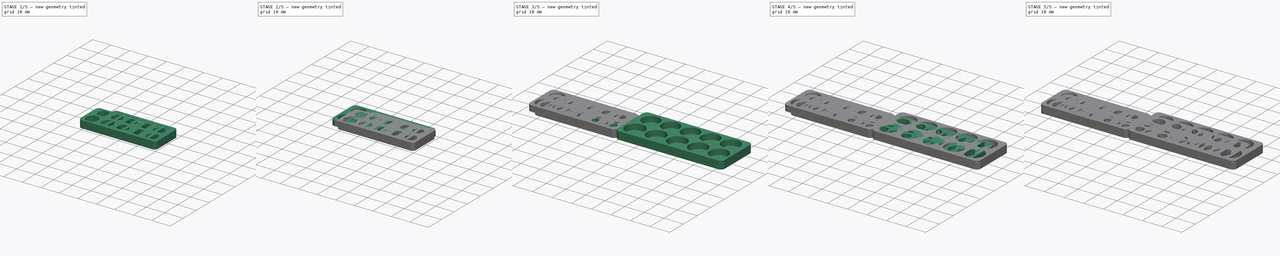
[diagram: build sequence overview — one tinted view per stage of 5, left to right]
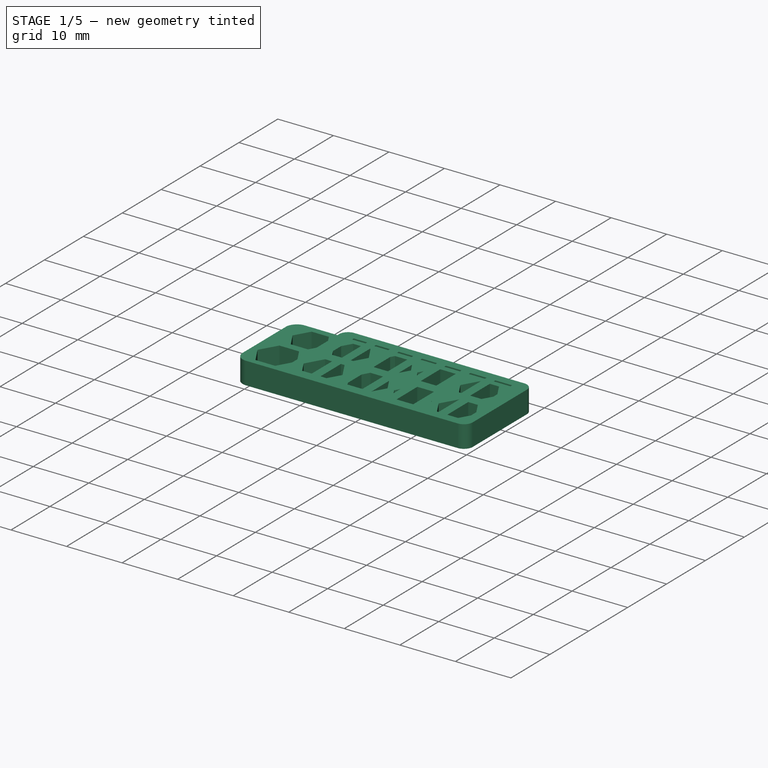
[diagram: stage 1 of 5 — iso view after this stage's code; geometry added in this stage tinted green]
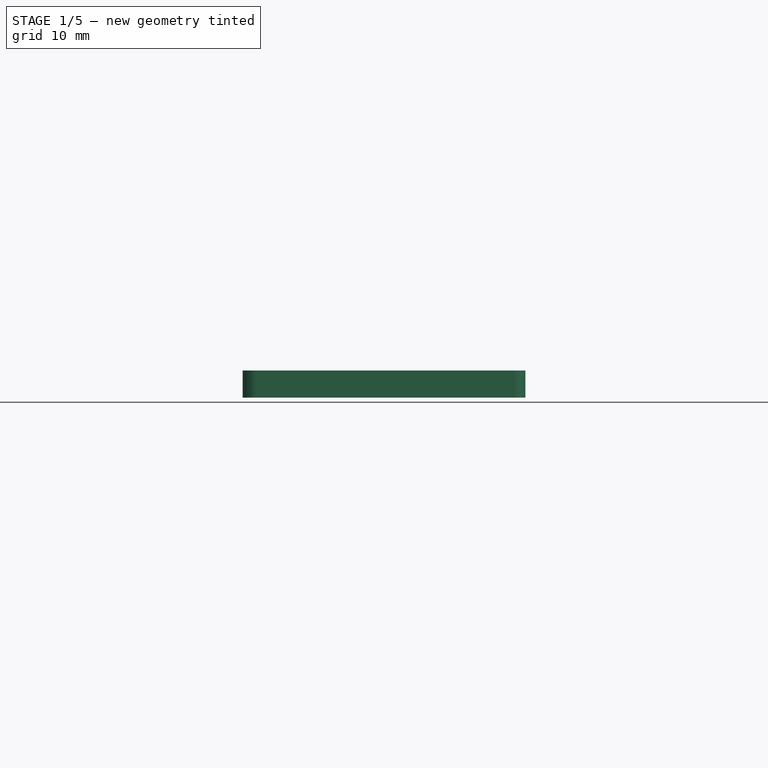
[diagram: stage 1 of 5 — front view after this stage's code; geometry added in this stage tinted green]
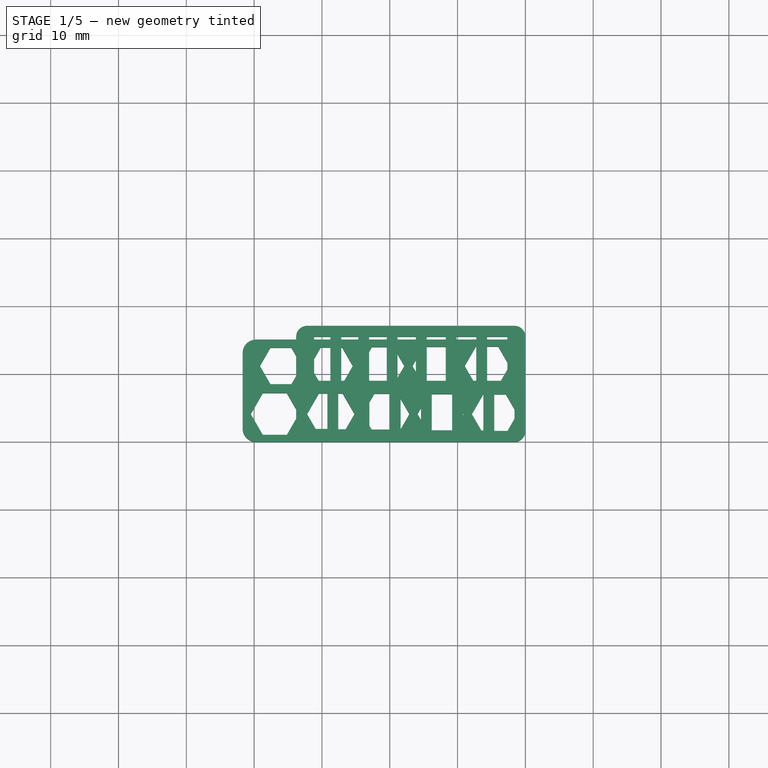
[diagram: stage 1 of 5 — top view after this stage's code; geometry added in this stage tinted green]
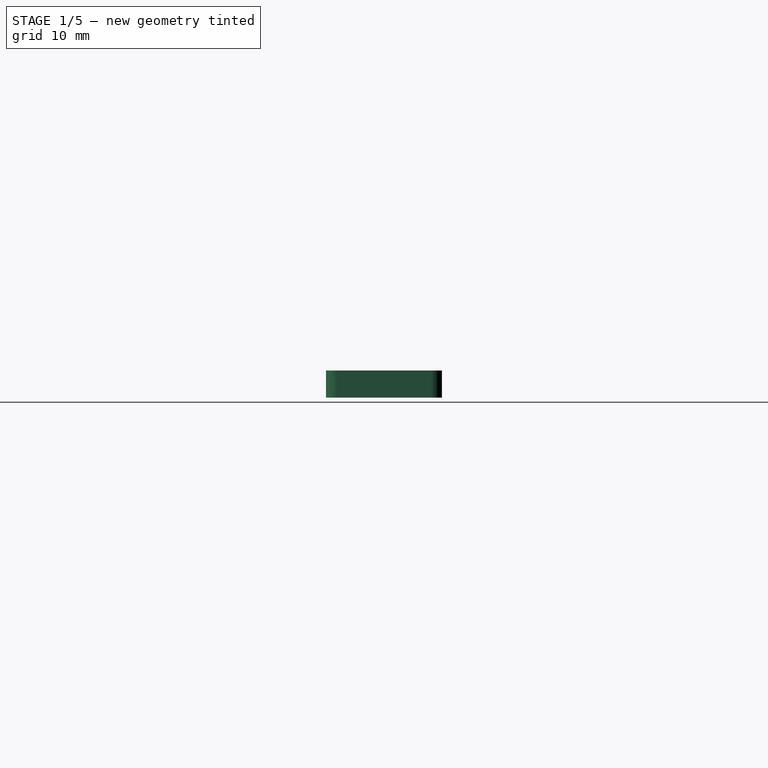
[diagram: stage 1 of 5 — right view after this stage's code; geometry added in this stage tinted green]
FCSTD DOCUMENT  (FreeCAD 0.19R20514 (Git))
Label: HoleTest
License: All rights reserved
LicenseURL: http://en.wikipedia.org/wiki/All_rights_reserved
objects: PartDesign::Body×18, Sketcher::SketchObject×11, PartDesign::Pad×11, PartDesign::FeatureBase×9, App::Part×4, App::DocumentObjectGroup×1
note: 60 computed .brp shape members not serialized (recipe doc carries the construction recipe); baked Part::Feature solids carry a one-line shape summary decoded from their .brp

FEATURE [PartDesign::Body] Body  label="M3S"
  Group = -> [Pad,Sketch]
  Origin = -> Origin
  Placement = pos=(-1,20,0) rot=(0,0,1;0rad)
  Tip = -> Pad
FEATURE [Sketcher::SketchObject] Sketch001
  MapMode = 5
  Support = -> [XY_Plane001]
  expr: .Constraints.R6 = .Constraints.R5 + 0.05mm
  expr: .Constraints.R7 = .Constraints.R6 + 0.05mm
  expr: .Constraints.R5 = .Constraints.R4 + 0.05mm
  expr: .Constraints.R3 = .Constraints.R2 + 0.05mm
  expr: .Constraints.R4 = .Constraints.R3 + 0.05mm
  expr: .Constraints.R1 = .Constraints.R0 + 0.05mm
  expr: .Constraints.R2 = .Constraints.R1 + 0.05mm
  expr: .Constraints.R8 = .Constraints.R7 + 0.05mm
  expr: Constraints[229] = .Constraints.R8 + 0.05mm
  sketch-geometry (92):
    g0: LineSegment StartX=-27.025 StartY=8.46218 StartZ=0 EndX=-25.45 EndY=11.1902 EndZ=0
    g1: LineSegment StartX=-25.45 StartY=11.1902 StartZ=0 EndX=-27.025 EndY=13.9181 EndZ=0
    g2: LineSegment StartX=-27.025 StartY=13.9181 StartZ=0 EndX=-30.175 EndY=13.9181 EndZ=0
    g3: LineSegment StartX=-30.175 StartY=13.9181 StartZ=0 EndX=-31.75 EndY=11.1902 EndZ=0
    g4: LineSegment StartX=-31.75 StartY=11.1902 StartZ=0 EndX=-30.175 EndY=8.46218 EndZ=0
    g5: LineSegment StartX=-30.175 StartY=8.46218 StartZ=0 EndX=-27.025 EndY=8.46218 EndZ=0
    g6: Circle [constr] CenterX=-28.6 CenterY=11.1902 CenterZ=0 NormalX=0 NormalY=0 NormalZ=1 AngleXU=0 Radius=3.15
    g7: LineSegment StartX=-19.45 StartY=8.41888 StartZ=0 EndX=-17.85 EndY=11.1902 EndZ=0
    g8: LineSegment StartX=-17.85 StartY=11.1902 StartZ=0 EndX=-19.45 EndY=13.9614 EndZ=0
    g9: LineSegment StartX=-19.45 StartY=13.9614 StartZ=0 EndX=-22.65 EndY=13.9614 EndZ=0
    g10: LineSegment StartX=-22.65 StartY=13.9614 StartZ=0 EndX=-24.25 EndY=11.1902 EndZ=0
    g11: LineSegment StartX=-24.25 StartY=11.1902 StartZ=0 EndX=-22.65 EndY=8.41888 EndZ=0
    g12: LineSegment StartX=-22.65 StartY=8.41888 StartZ=0 EndX=-19.45 EndY=8.41888 EndZ=0
    g13: Circle [constr] CenterX=-21.05 CenterY=11.1902 CenterZ=0 NormalX=0 NormalY=0 NormalZ=1 AngleXU=0 Radius=3.2
    g14: LineSegment StartX=-11.775 StartY=8.37558 StartZ=0 EndX=-10.15 EndY=11.1902 EndZ=0
    g15: LineSegment StartX=-10.15 StartY=11.1902 StartZ=0 EndX=-11.775 EndY=14.0047 EndZ=0
    g16: LineSegment StartX=-11.775 StartY=14.0047 StartZ=0 EndX=-15.025 EndY=14.0047 EndZ=0
    g17: LineSegment StartX=-15.025 StartY=14.0047 StartZ=0 EndX=-16.65 EndY=11.1902 EndZ=0
    g18: LineSegment StartX=-16.65 StartY=11.1902 StartZ=0 EndX=-15.025 EndY=8.37558 EndZ=0
    g19: LineSegment StartX=-15.025 StartY=8.37558 StartZ=0 EndX=-11.775 EndY=8.37558 EndZ=0
    g20: Circle [constr] CenterX=-13.4 CenterY=11.1902 CenterZ=0 NormalX=0 NormalY=0 NormalZ=1 AngleXU=0 Radius=3.25
    g21: LineSegment StartX=-4 StartY=8.33227 StartZ=0 EndX=-2.35 EndY=11.1902 EndZ=0
    g22: LineSegment StartX=-2.35 StartY=11.1902 StartZ=0 EndX=-4 EndY=14.048 EndZ=0
    g23: LineSegment StartX=-4 StartY=14.048 StartZ=0 EndX=-7.3 EndY=14.048 EndZ=0
    g24: LineSegment StartX=-7.3 StartY=14.048 StartZ=0 EndX=-8.95 EndY=11.1902 EndZ=0
    g25: LineSegment StartX=-8.95 StartY=11.1902 StartZ=0 EndX=-7.3 EndY=8.33227 EndZ=0
    g26: LineSegment StartX=-7.3 StartY=8.33227 StartZ=0 EndX=-4 EndY=8.33227 EndZ=0
    g27: Circle [constr] CenterX=-5.65 CenterY=11.1902 CenterZ=0 NormalX=0 NormalY=0 NormalZ=1 AngleXU=0 Radius=3.3
    g28: LineSegment StartX=-32.95 StartY=11.1902 StartZ=0 EndX=-34.5 EndY=13.8748 EndZ=0
    g29: LineSegment StartX=-34.5 StartY=13.8748 StartZ=0 EndX=-37.6 EndY=13.8748 EndZ=0
    g30: LineSegment StartX=-37.6 StartY=13.8748 StartZ=0 EndX=-39.15 EndY=11.1902 EndZ=0
    g31: LineSegment StartX=-39.15 StartY=11.1902 StartZ=0 EndX=-37.6 EndY=8.50548 EndZ=0
    g32: LineSegment StartX=-37.6 StartY=8.50548 StartZ=0 EndX=-34.5 EndY=8.50548 EndZ=0
    g33: LineSegment StartX=-34.5 StartY=8.50548 StartZ=0 EndX=-32.95 EndY=11.1902 EndZ=0
    g34: Circle [constr] CenterX=-36.05 CenterY=11.1902 CenterZ=0 NormalX=0 NormalY=0 NormalZ=1 AngleXU=0 Radius=3.1
    g35: LineSegment StartX=-2.875 StartY=1.2 StartZ=0 EndX=-1.2 EndY=4.10119 EndZ=0
    g36: LineSegment StartX=-1.2 StartY=4.10119 StartZ=0 EndX=-2.875 EndY=7.00237 EndZ=0
    g37: LineSegment StartX=-2.875 StartY=7.00237 StartZ=0 EndX=-6.225 EndY=7.00237 EndZ=0
    g38: LineSegment StartX=-6.225 StartY=7.00237 StartZ=0 EndX=-7.9 EndY=4.10119 EndZ=0
    g39: LineSegment StartX=-7.9 StartY=4.10119 StartZ=0 EndX=-6.225 EndY=1.2 EndZ=0
    g40: LineSegment StartX=-6.225 StartY=1.2 StartZ=0 EndX=-2.875 EndY=1.2 EndZ=0
    g41: Circle [constr] CenterX=-4.55 CenterY=4.10119 CenterZ=0 NormalX=0 NormalY=0 NormalZ=1 AngleXU=0 Radius=3.35
    g42: LineSegment StartX=-9.1 StartY=4.10119 StartZ=0 EndX=-10.8 EndY=7.04567 EndZ=0
    g43: LineSegment StartX=-10.8 StartY=7.04567 StartZ=0 EndX=-14.2 EndY=7.04567 EndZ=0
    g44: LineSegment StartX=-14.2 StartY=7.04567 StartZ=0 EndX=-15.9 EndY=4.10119 EndZ=0
    g45: LineSegment StartX=-15.9 StartY=4.10119 StartZ=0 EndX=-14.2 EndY=1.1567 EndZ=0
    g46: LineSegment StartX=-14.2 StartY=1.1567 StartZ=0 EndX=-10.8 EndY=1.1567 EndZ=0
    g47: LineSegment StartX=-10.8 StartY=1.1567 StartZ=0 EndX=-9.1 EndY=4.10119 EndZ=0
    g48: Circle [constr] CenterX=-12.5 CenterY=4.10119 CenterZ=0 NormalX=0 NormalY=0 NormalZ=1 AngleXU=0 Radius=3.4
    g49: LineSegment StartX=-17.1 StartY=4.10119 StartZ=0 EndX=-18.825 EndY=7.08897 EndZ=0
    g50: LineSegment StartX=-18.825 StartY=7.08897 StartZ=0 EndX=-22.275 EndY=7.08897 EndZ=0
    g51: LineSegment StartX=-22.275 StartY=7.08897 StartZ=0 EndX=-24 EndY=4.10119 EndZ=0
    g52: LineSegment StartX=-24 StartY=4.10119 StartZ=0 EndX=-22.275 EndY=1.1134 EndZ=0
    g53: LineSegment StartX=-22.275 StartY=1.1134 StartZ=0 EndX=-18.825 EndY=1.1134 EndZ=0
    g54: LineSegment StartX=-18.825 StartY=1.1134 StartZ=0 EndX=-17.1 EndY=4.10119 EndZ=0
    g55: Circle [constr] CenterX=-20.55 CenterY=4.10119 CenterZ=0 NormalX=0 NormalY=0 NormalZ=1 AngleXU=0 Radius=3.45
    g56: LineSegment StartX=-26.95 StartY=1.0701 StartZ=0 EndX=-25.2 EndY=4.10119 EndZ=0
    g57: LineSegment StartX=-25.2 StartY=4.10119 StartZ=0 EndX=-26.95 EndY=7.13227 EndZ=0
    g58: LineSegment StartX=-26.95 StartY=7.13227 StartZ=0 EndX=-30.45 EndY=7.13227 EndZ=0
    g59: LineSegment StartX=-30.45 StartY=7.13227 StartZ=0 EndX=-32.2 EndY=4.10119 EndZ=0
    g60: LineSegment StartX=-32.2 StartY=4.10119 StartZ=0 EndX=-30.45 EndY=1.0701 EndZ=0
    g61: LineSegment StartX=-30.45 StartY=1.0701 StartZ=0 EndX=-26.95 EndY=1.0701 EndZ=0
    g62: Circle [constr] CenterX=-28.7 CenterY=4.10119 CenterZ=0 NormalX=0 NormalY=0 NormalZ=1 AngleXU=0 Radius=3.5
    g63: LineSegment [constr] StartX=-32.95 StartY=11.1902 StartZ=0 EndX=-31.75 EndY=11.1902 EndZ=0
    g64: LineSegment [constr] StartX=-25.45 StartY=11.1902 StartZ=0 EndX=-24.25 EndY=11.1902 EndZ=0
    g65: LineSegment [constr] StartX=-17.85 StartY=11.1902 StartZ=0 EndX=-16.65 EndY=11.1902 EndZ=0
    g66: LineSegment [constr] StartX=-10.15 StartY=11.1902 StartZ=0 EndX=-8.95 EndY=11.1902 EndZ=0
    g67: LineSegment [constr] StartX=-7.3 StartY=8.33227 StartZ=0 EndX=-7.3 EndY=7.13227 EndZ=0
    g68: LineSegment [constr] StartX=-20.85 StartY=11.1902 StartZ=0 EndX=-20.85 EndY=4.10119 EndZ=0
    g69: LineSegment StartX=-39.7 StartY=15.0748 StartZ=0 EndX=-2 EndY=15.0748 EndZ=0
    g70: LineSegment StartX=0 StartY=13.0748 StartZ=0 EndX=0 EndY=2 EndZ=0
    g71: LineSegment StartX=-2 StartY=0 StartZ=0 EndX=-39.7 EndY=0 EndZ=0
    g72: LineSegment StartX=-41.7 StartY=2 StartZ=0 EndX=-41.7 EndY=13.0748 EndZ=0
    g73: ArcOfCircle CenterX=-39.7 CenterY=13.0748 CenterZ=0 NormalX=0 NormalY=0 NormalZ=1 AngleXU=0 Radius=2 StartAngle=1.5708 EndAngle=3.14159
    g74: ArcOfCircle CenterX=-2 CenterY=13.0748 CenterZ=0 NormalX=0 NormalY=0 NormalZ=1 AngleXU=0 Radius=2 StartAngle=3e-16 EndAngle=1.5708
    g75: ArcOfCircle CenterX=-2 CenterY=2 CenterZ=0 NormalX=0 NormalY=0 NormalZ=1 AngleXU=0 Radius=2 StartAngle=4.71239 EndAngle=6.28319
    g76: ArcOfCircle CenterX=-39.7 CenterY=2 CenterZ=0 NormalX=0 NormalY=0 NormalZ=1 AngleXU=0 Radius=2 StartAngle=3.14159 EndAngle=4.71239
    g77: LineSegment [constr] StartX=-37.6 StartY=13.8748 StartZ=0 EndX=-37.6 EndY=15.0748 EndZ=0
    g78: LineSegment StartX=-33.4 StartY=4.10119 StartZ=0 EndX=-35.175 EndY=7.17558 EndZ=0
    g79: LineSegment StartX=-35.175 StartY=7.17558 StartZ=0 EndX=-38.725 EndY=7.17558 EndZ=0
    g80: LineSegment StartX=-38.725 StartY=7.17558 StartZ=0 EndX=-40.5 EndY=4.10119 EndZ=0
    g81: LineSegment StartX=-40.5 StartY=4.10119 StartZ=0 EndX=-38.725 EndY=1.02679 EndZ=0
    g82: LineSegment StartX=-38.725 StartY=1.02679 StartZ=0 EndX=-35.175 EndY=1.02679 EndZ=0
    g83: LineSegment StartX=-35.175 StartY=1.02679 StartZ=0 EndX=-33.4 EndY=4.10119 EndZ=0
    g84: Circle [constr] CenterX=-36.95 CenterY=4.10119 CenterZ=0 NormalX=0 NormalY=0 NormalZ=1 AngleXU=0 Radius=3.55
    g85: LineSegment [constr] StartX=-33.4 StartY=4.10119 StartZ=0 EndX=-32.2 EndY=4.10119 EndZ=0
    g86: LineSegment [constr] StartX=-25.2 StartY=4.10119 StartZ=0 EndX=-24 EndY=4.10119 EndZ=0
    g87: LineSegment [constr] StartX=-17.1 StartY=4.10119 StartZ=0 EndX=-15.9 EndY=4.10119 EndZ=0
    g88: LineSegment [constr] StartX=-9.1 StartY=4.10119 StartZ=0 EndX=-7.9 EndY=4.10119 EndZ=0
    g89: LineSegment [constr] StartX=-40.5 StartY=4.10119 StartZ=0 EndX=-41.7 EndY=4.10119 EndZ=0
    g90: LineSegment [constr] StartX=-2.875 StartY=1.2 StartZ=0 EndX=-2.875 EndY=0 EndZ=0
    g91: LineSegment [constr] StartX=-1.2 StartY=4.10119 StartZ=0 EndX=0 EndY=4.10119 EndZ=0
  constraints (223):
    c: Coincident(g0,g1)
    c: Coincident(g1,g2)
    c: Coincident(g2,g3)
    c: Coincident(g3,g4)
    c: Coincident(g4,g5)
    c: Coincident(g5,g0)
    c: Equal(g0, g1-g5) x5
    c: PointOnObject(g0,g6)
    c: PointOnObject(g1,g6)
    c: PointOnObject(g2,g6)
    c: PointOnObject(g3,g6)
    c: PointOnObject(g4,g6)
    c: PointOnObject(g5,g6)
    c: Coincident(g7,g8)
    c: Coincident(g8,g9)
    c: Coincident(g9,g10)
    c: Coincident(g10,g11)
    c: Coincident(g11,g12)
    c: Coincident(g12,g7)
    c: Equal(g7, g8-g12) x5
    c: PointOnObject(g7,g13)
    c: PointOnObject(g8,g13)
    c: PointOnObject(g9,g13)
    c: PointOnObject(g10,g13)
    c: PointOnObject(g11,g13)
    c: PointOnObject(g12,g13)
    c: Coincident(g14,g15)
    c: Coincident(g15,g16)
    c: Coincident(g16,g17)
    c: Coincident(g17,g18)
    c: Coincident(g18,g19)
    c: Coincident(g19,g14)
    c: Equal(g14, g15-g19) x5
    c: PointOnObject(g14,g20)
    c: PointOnObject(g15,g20)
    c: PointOnObject(g16,g20)
    c: PointOnObject(g17,g20)
    c: PointOnObject(g18,g20)
    c: PointOnObject(g19,g20)
    c: Coincident(g21,g22)
    c: Coincident(g22,g23)
    c: Coincident(g23,g24)
    c: Coincident(g24,g25)
    c: Coincident(g25,g26)
    c: Coincident(g26,g21)
    c: Equal(g21, g22-g26) x5
    c: PointOnObject(g21,g27)
    c: PointOnObject(g22,g27)
    c: PointOnObject(g23,g27)
    c: PointOnObject(g24,g27)
    c: PointOnObject(g25,g27)
    c: PointOnObject(g26,g27)
    c: Coincident(g28,g29)
    c: Coincident(g29,g30)
    c: Coincident(g30,g31)
    c: Coincident(g31,g32)
    c: Coincident(g32,g33)
    c: Coincident(g33,g28)
    c: Equal(g28, g29-g33) x5
    c: PointOnObject(g28,g34)
    c: PointOnObject(g29,g34)
    c: PointOnObject(g30,g34)
    c: PointOnObject(g31,g34)
    c: PointOnObject(g32,g34)
    c: PointOnObject(g33,g34)
    c: Radius(g34) = 3.1  'R0'
    c: Radius(g6) = 3.15  'R1'
    c: Radius(g13) = 3.2  'R2'
    c: Horizontal(g29)
    c: Horizontal(g2)
    c: Horizontal(g23)
    c: Horizontal(g16)
    c: Radius(g20) = 3.25  'R3'
    c: Radius(g27) = 3.3  'R4'
    c: Coincident(g35,g36)
    c: Coincident(g36,g37)
    c: Coincident(g37,g38)
    c: Coincident(g38,g39)
    c: Coincident(g39,g40)
    c: Coincident(g40,g35)
    c: Equal(g35, g36-g40) x5
    c: PointOnObject(g35,g41)
    c: PointOnObject(g36,g41)
    c: PointOnObject(g37,g41)
    c: PointOnObject(g38,g41)
    c: PointOnObject(g39,g41)
    c: PointOnObject(g40,g41)
    c: Horizontal(g37)
    c: Radius(g41) = 3.35  'R5'
    c: Horizontal(g9)
    c: Coincident(g42,g43)
    c: Coincident(g43,g44)
    c: Coincident(g44,g45)
    c: Coincident(g45,g46)
    c: Coincident(g46,g47)
    c: Coincident(g47,g42)
    c: Equal(g42, g43-g47) x5
    c: PointOnObject(g42,g48)
    c: PointOnObject(g43,g48)
    c: PointOnObject(g44,g48)
    c: PointOnObject(g45,g48)
    c: PointOnObject(g46,g48)
    c: PointOnObject(g47,g48)
    c: Horizontal(g43)
    c: Radius(g48) = 3.4  'R6'
    c: Coincident(g49,g50)
    c: Coincident(g50,g51)
    c: Coincident(g51,g52)
    c: Coincident(g52,g53)
    c: Coincident(g53,g54)
    c: Coincident(g54,g49)
    c: Equal(g49, g50-g54) x5
    c: PointOnObject(g49,g55)
    c: PointOnObject(g50,g55)
    c: PointOnObject(g51,g55)
    c: PointOnObject(g52,g55)
    c: PointOnObject(g53,g55)
    c: PointOnObject(g54,g55)
    c: Horizontal(g50)
    c: Radius(g55) = 3.45  'R7'
    c: Coincident(g56,g57)
    c: Coincident(g57,g58)
    c: Coincident(g58,g59)
    c: Coincident(g59,g60)
    c: Coincident(g60,g61)
    c: Coincident(g61,g56)
    c: Equal(g56, g57-g61) x5
    c: PointOnObject(g56,g62)
    c: PointOnObject(g57,g62)
    c: PointOnObject(g58,g62)
    c: PointOnObject(g59,g62)
    c: PointOnObject(g60,g62)
    c: PointOnObject(g61,g62)
    c: Horizontal(g58)
    c: Radius(g62) = 3.5  'R8'
    c: Coincident(g63,g28)
    c: Coincident(g63,g3)
    c: Horizontal(g63)
    c: Coincident(g64,g0)
    c: Coincident(g64,g10)
    c: Horizontal(g64)
    c: Coincident(g65,g7)
    c: Horizontal(g65)
    c: Coincident(g17,g65)
    c: Coincident(g66,g14)
    c: Coincident(g66,g24)
    c: Horizontal(g66)
    c: Equal(g63,g64)
    c: Equal(g64,g65)
    c: Equal(g65,g66)
    c: DistanceX(g63,g63) = 1.2
    c: Coincident(g67,g25)
    c: Vertical(g67)
    c: PointOnObject(g67,g58)
    c: Vertical(g68)
    c: Symmetric(g34,g27,g68)
    c: Horizontal(g69)
    c: Horizontal(g71)
    c: Vertical(g70)
    c: Vertical(g72)
    c: Tangent(g69,g73) = 1.5708
    c: Tangent(g72,g73) = 1.5708
    c: Tangent(g69,g74) = 1.5708
    c: Tangent(g70,g74) = 1.5708
    c: Tangent(g70,g75) = 1.5708
    c: Tangent(g71,g75) = 1.5708
    c: Tangent(g71,g76) = 1.5708
    c: Tangent(g72,g76) = 1.5708
    c: Equal(g76,g73)
    c: Equal(g73,g74)
    c: Equal(g74,g75)
    c: Radius(g73) = 2
    c: Coincident(g77,g29)
    c: PointOnObject(g77,g69)
    c: Vertical(g77)
    c: Coincident(g78,g79)
    c: Coincident(g79,g80)
    c: Coincident(g80,g81)
    c: Coincident(g81,g82)
    c: Coincident(g82,g83)
    c: Coincident(g83,g78)
    c: Equal(g78, g79-g83) x5
    c: PointOnObject(g78,g84)
    c: PointOnObject(g79,g84)
    c: PointOnObject(g80,g84)
    c: PointOnObject(g81,g84)
    c: PointOnObject(g82,g84)
    c: PointOnObject(g83,g84)
    c: Horizontal(g79)
    c: Radius(g84) = 3.55
    c: Coincident(g85,g78)
    c: Coincident(g85,g59)
    c: Horizontal(g85)
    c: Coincident(g86,g56)
    c: Horizontal(g86)
    c: Coincident(g87,g49)
    c: Coincident(g87,g44)
    c: Horizontal(g87)
    c: Coincident(g88,g42)
    c: Coincident(g88,g38)
    c: Horizontal(g88)
    c: Coincident(g89,g80)
    c: PointOnObject(g89,g72)
    c: Horizontal(g89)
    c: Coincident(g90,g35)
    c: PointOnObject(g90,g71)
    c: Vertical(g90)
    c: Coincident(g91,g35)
    c: PointOnObject(g91,g70)
    c: Horizontal(g91)
    c: Equal(g66,g88)
    c: Equal(g88,g87)
    c: Equal(g87,g86)
    c: Equal(g86,g85)
    c: Equal(g85,g67)
    c: Equal(g67,g77)
    c: Equal(g77,g91)
    c: Equal(g91,g90)
    c: Equal(g90,g89)
    c: Symmetric(g80,g35,g68)
    c: Coincident(g86,g51)
    c: PointOnObject(g71,g-1)
    c: PointOnObject(g70,g-2)
FEATURE [PartDesign::Pad] Pad001
  AllowMultiFace = false
  Length = 4
  Length2 = 100
  Profile = -> Sketch001
  Type = 0
FEATURE [PartDesign::Body] Body010
  BaseFeature = -> Pad007
  Group = -> [Clone002]
  Origin = -> Origin012
  Placement = pos=(-1,3,-1e-15) rot=(1,0,0;1.5708rad)
  Tip = -> Clone002
FEATURE [PartDesign::FeatureBase] Clone003
  BaseFeature = -> Pad001
FEATURE [PartDesign::Body] Body014
  BaseFeature = -> Pad009
  Group = -> [Clone006]
  Origin = -> Origin016
  Placement = pos=(1,3,-1e-15) rot=(1,0,0;1.5708rad)
  Tip = -> Clone006
FEATURE [App::Part] Part001
  Group = -> [Body012,Body013,Body014,Body015]
  Origin = -> Origin009
  Placement = pos=(0,40,0) rot=(0,0,1;0rad)
FEATURE [App::DocumentObjectGroup] Group
FEATURE [App::Part] Part002  label="M4_Horizontal"
  Group = -> [Body003,Body005,Body007,Body002]
  Origin = -> Origin018
FEATURE [Sketcher::SketchObject] Sketch010
  MapMode = 5
  Support = -> [XY_Plane019]
  expr: .Constraints.W1 = .Constraints.W0 + 0.1mm
  expr: .Constraints.H2 = .Constraints.H1 + 0.1mm
  expr: .Constraints.W2 = .Constraints.W1 + 0.1mm
  expr: .Constraints.W3 = .Constraints.W2 + 0.1mm
  expr: .Constraints.H4 = .Constraints.H3 + 0.1mm
  expr: .Constraints.W6 = .Constraints.W5 + 0.1mm
  expr: .Constraints.H3 = .Constraints.H2 + 0.1mm
  expr: .Constraints.W4 = .Constraints.W3 + 0.1mm
  expr: .Constraints.H1 = .Constraints.H0 + 0.1mm
  expr: .Constraints.W5 = .Constraints.W4 + 0.1mm
  expr: .Constraints.H5 = .Constraints.H4 + 0.1mm
  expr: .Constraints.H6 = .Constraints.H5 + 0.1mm
  sketch-geometry (89):
    g0: LineSegment StartX=-31.15 StartY=15.5 StartZ=0 EndX=-28.75 EndY=15.5 EndZ=0
    g1: LineSegment StartX=-28.75 StartY=15.5 StartZ=0 EndX=-28.75 EndY=9 EndZ=0
    g2: LineSegment StartX=-28.75 StartY=9 StartZ=0 EndX=-31.15 EndY=9 EndZ=0
    g3: LineSegment StartX=-31.15 StartY=9 StartZ=0 EndX=-31.15 EndY=15.5 EndZ=0
    g4: LineSegment StartX=-27.15 StartY=15.5 StartZ=0 EndX=-24.65 EndY=15.5 EndZ=0
    g5: LineSegment StartX=-24.65 StartY=15.5 StartZ=0 EndX=-24.65 EndY=9 EndZ=0
    g6: LineSegment StartX=-24.65 StartY=9 StartZ=0 EndX=-27.15 EndY=9 EndZ=0
    g7: LineSegment StartX=-27.15 StartY=9 StartZ=0 EndX=-27.15 EndY=15.5 EndZ=0
    g8: LineSegment StartX=-23.05 StartY=15.5 StartZ=0 EndX=-20.45 EndY=15.5 EndZ=0
    g9: LineSegment StartX=-20.45 StartY=15.5 StartZ=0 EndX=-20.45 EndY=9 EndZ=0
    g10: LineSegment StartX=-20.45 StartY=9 StartZ=0 EndX=-23.05 EndY=9 EndZ=0
    g11: LineSegment StartX=-23.05 StartY=9 StartZ=0 EndX=-23.05 EndY=15.5 EndZ=0
    g12: LineSegment StartX=-18.85 StartY=15.5 StartZ=0 EndX=-16.15 EndY=15.5 EndZ=0
    g13: LineSegment StartX=-16.15 StartY=15.5 StartZ=0 EndX=-16.15 EndY=9 EndZ=0
    g14: LineSegment StartX=-16.15 StartY=9 StartZ=0 EndX=-18.85 EndY=9 EndZ=0
    g15: LineSegment StartX=-18.85 StartY=9 StartZ=0 EndX=-18.85 EndY=15.5 EndZ=0
    g16: LineSegment StartX=-14.55 StartY=15.5 StartZ=0 EndX=-11.75 EndY=15.5 EndZ=0
    g17: LineSegment StartX=-11.75 StartY=15.5 StartZ=0 EndX=-11.75 EndY=9 EndZ=0
    g18: LineSegment StartX=-11.75 StartY=9 StartZ=0 EndX=-14.55 EndY=9 EndZ=0
    g19: LineSegment StartX=-14.55 StartY=9 StartZ=0 EndX=-14.55 EndY=15.5 EndZ=0
    g20: LineSegment [constr] StartX=-28.75 StartY=15.5 StartZ=0 EndX=-27.15 EndY=15.5 EndZ=0
    g21: LineSegment [constr] StartX=-24.65 StartY=15.5 StartZ=0 EndX=-23.05 EndY=15.5 EndZ=0
    g22: LineSegment [constr] StartX=-20.45 StartY=15.5 StartZ=0 EndX=-18.85 EndY=15.5 EndZ=0
    g23: LineSegment [constr] StartX=-16.15 StartY=15.5 StartZ=0 EndX=-14.55 EndY=15.5 EndZ=0
    g24: LineSegment [constr] StartX=-11.75 StartY=15.5 StartZ=0 EndX=-10.15 EndY=15.5 EndZ=0
    g25: LineSegment StartX=-10.15 StartY=15.5 StartZ=0 EndX=-7.25 EndY=15.5 EndZ=0
    g26: LineSegment StartX=-7.25 StartY=15.5 StartZ=0 EndX=-7.25 EndY=9 EndZ=0
    g27: LineSegment StartX=-7.25 StartY=9 StartZ=0 EndX=-10.15 EndY=9 EndZ=0
    g28: LineSegment StartX=-10.15 StartY=9 StartZ=0 EndX=-10.15 EndY=15.5 EndZ=0
    g29: LineSegment [constr] StartX=-7.25 StartY=15.5 StartZ=0 EndX=-5.65 EndY=15.5 EndZ=0
    g30: LineSegment StartX=-5.65 StartY=15.5 StartZ=0 EndX=-2.65 EndY=15.5 EndZ=0
    g31: LineSegment StartX=-2.65 StartY=15.5 StartZ=0 EndX=-2.65 EndY=9 EndZ=0
    g32: LineSegment StartX=-2.65 StartY=9 StartZ=0 EndX=-5.65 EndY=9 EndZ=0
    g33: LineSegment StartX=-5.65 StartY=9 StartZ=0 EndX=-5.65 EndY=15.5 EndZ=0
    g34: LineSegment StartX=-32.2 StartY=7.4 StartZ=0 EndX=-29.2 EndY=7.4 EndZ=0
    g35: LineSegment StartX=-29.2 StartY=7.4 StartZ=0 EndX=-29.2 EndY=1.9 EndZ=0
    g36: LineSegment StartX=-29.2 StartY=1.9 StartZ=0 EndX=-32.2 EndY=1.9 EndZ=0
    g37: LineSegment StartX=-32.2 StartY=1.9 StartZ=0 EndX=-32.2 EndY=7.4 EndZ=0
    g38: LineSegment StartX=-27.6 StartY=7.45 StartZ=0 EndX=-24.6 EndY=7.45 EndZ=0
    g39: LineSegment StartX=-24.6 StartY=7.45 StartZ=0 EndX=-24.6 EndY=1.85 EndZ=0
    g40: LineSegment StartX=-24.6 StartY=1.85 StartZ=0 EndX=-27.6 EndY=1.85 EndZ=0
    g41: LineSegment StartX=-27.6 StartY=1.85 StartZ=0 EndX=-27.6 EndY=7.45 EndZ=0
    g42: LineSegment StartX=-23 StartY=7.5 StartZ=0 EndX=-20 EndY=7.5 EndZ=0
    g43: LineSegment StartX=-20 StartY=7.5 StartZ=0 EndX=-20 EndY=1.8 EndZ=0
    g44: LineSegment StartX=-20 StartY=1.8 StartZ=0 EndX=-23 EndY=1.8 EndZ=0
    g45: LineSegment StartX=-23 StartY=1.8 StartZ=0 EndX=-23 EndY=7.5 EndZ=0
    g46: LineSegment StartX=-18.4 StartY=7.55 StartZ=0 EndX=-15.4 EndY=7.55 EndZ=0
    g47: LineSegment StartX=-15.4 StartY=7.55 StartZ=0 EndX=-15.4 EndY=1.75 EndZ=0
    g48: LineSegment StartX=-15.4 StartY=1.75 StartZ=0 EndX=-18.4 EndY=1.75 EndZ=0
    g49: LineSegment StartX=-18.4 StartY=1.75 StartZ=0 EndX=-18.4 EndY=7.55 EndZ=0
    g50: LineSegment StartX=-13.8 StartY=7.6 StartZ=0 EndX=-10.8 EndY=7.6 EndZ=0
    g51: LineSegment StartX=-10.8 StartY=7.6 StartZ=0 EndX=-10.8 EndY=1.7 EndZ=0
    g52: LineSegment StartX=-10.8 StartY=1.7 StartZ=0 EndX=-13.8 EndY=1.7 EndZ=0
    g53: LineSegment StartX=-13.8 StartY=1.7 StartZ=0 EndX=-13.8 EndY=7.6 EndZ=0
    g54: LineSegment StartX=-9.2 StartY=7.65 StartZ=0 EndX=-6.2 EndY=7.65 EndZ=0
    g55: LineSegment StartX=-6.2 StartY=7.65 StartZ=0 EndX=-6.2 EndY=1.65 EndZ=0
    g56: LineSegment StartX=-6.2 StartY=1.65 StartZ=0 EndX=-9.2 EndY=1.65 EndZ=0
    g57: LineSegment StartX=-9.2 StartY=1.65 StartZ=0 EndX=-9.2 EndY=7.65 EndZ=0
    g58: LineSegment StartX=-4.6 StartY=7.7 StartZ=0 EndX=-1.6 EndY=7.7 EndZ=0
    g59: LineSegment StartX=-1.6 StartY=7.7 StartZ=0 EndX=-1.6 EndY=1.6 EndZ=0
    g60: LineSegment StartX=-1.6 StartY=1.6 StartZ=0 EndX=-4.6 EndY=1.6 EndZ=0
    g61: LineSegment StartX=-4.6 StartY=1.6 StartZ=0 EndX=-4.6 EndY=7.7 EndZ=0
    g62: LineSegment [constr] StartX=-32.2 StartY=4.65 StartZ=0 EndX=-29.2 EndY=4.65 EndZ=0
    g63: LineSegment [constr] StartX=-29.2 StartY=4.65 StartZ=0 EndX=-27.6 EndY=4.65 EndZ=0
    g64: LineSegment [constr] StartX=-27.6 StartY=4.65 StartZ=0 EndX=-24.6 EndY=4.65 EndZ=0
    g65: LineSegment [constr] StartX=-24.6 StartY=4.65 StartZ=0 EndX=-23 EndY=4.65 EndZ=0
    g66: LineSegment [constr] StartX=-23 StartY=4.65 StartZ=0 EndX=-20 EndY=4.65 EndZ=0
    g67: LineSegment [constr] StartX=-20 StartY=4.65 StartZ=0 EndX=-18.4 EndY=4.65 EndZ=0
    g68: LineSegment [constr] StartX=-18.4 StartY=4.65 StartZ=0 EndX=-15.4 EndY=4.65 EndZ=0
    g69: LineSegment [constr] StartX=-15.4 StartY=4.65 StartZ=0 EndX=-13.8 EndY=4.65 EndZ=0
    g70: LineSegment [constr] StartX=-13.8 StartY=4.65 StartZ=0 EndX=-10.8 EndY=4.65 EndZ=0
    g71: LineSegment [constr] StartX=-10.8 StartY=4.65 StartZ=0 EndX=-9.2 EndY=4.65 EndZ=0
    g72: LineSegment [constr] StartX=-9.2 StartY=4.65 StartZ=0 EndX=-6.2 EndY=4.65 EndZ=0
    g73: LineSegment [constr] StartX=-6.2 StartY=4.65 StartZ=0 EndX=-4.6 EndY=4.65 EndZ=0
    g74: LineSegment [constr] StartX=-4.6 StartY=4.65 StartZ=0 EndX=-1.6 EndY=4.65 EndZ=0
    g75: LineSegment [constr] StartX=-29.2 StartY=7.4 StartZ=0 EndX=-29.2 EndY=9 EndZ=0
    g76: LineSegment [constr] StartX=-16.9 StartY=15.5 StartZ=0 EndX=-16.9 EndY=1.75 EndZ=0
    g77: LineSegment StartX=-32.2 StartY=17.1 StartZ=0 EndX=-1.6 EndY=17.1 EndZ=0
    g78: LineSegment StartX=0 StartY=15.5 StartZ=0 EndX=0 EndY=1.6 EndZ=0
    g79: LineSegment StartX=-1.6 StartY=0 StartZ=0 EndX=-32.2 EndY=0 EndZ=0
    g80: LineSegment StartX=-33.8 StartY=1.6 StartZ=0 EndX=-33.8 EndY=15.5 EndZ=0
    g81: LineSegment [constr] StartX=-32.2 StartY=1.9 StartZ=0 EndX=-33.8 EndY=1.9 EndZ=0
    g82: LineSegment [constr] StartX=-1.6 StartY=1.6 StartZ=0 EndX=-1.6 EndY=0 EndZ=0
    g83: LineSegment [constr] StartX=-1.6 StartY=7.7 StartZ=0 EndX=0 EndY=7.7 EndZ=0
    g84: LineSegment [constr] StartX=-2.65 StartY=15.5 StartZ=0 EndX=-2.65 EndY=17.1 EndZ=0
    g85: ArcOfCircle CenterX=-1.6 CenterY=15.5 CenterZ=0 NormalX=0 NormalY=0 NormalZ=1 AngleXU=0 Radius=1.6 StartAngle=-9e-16 EndAngle=1.5708
    g86: ArcOfCircle CenterX=-1.6 CenterY=1.6 CenterZ=0 NormalX=0 NormalY=0 NormalZ=1 AngleXU=0 Radius=1.6 StartAngle=4.71239 EndAngle=6.28319
    g87: ArcOfCircle CenterX=-32.2 CenterY=1.6 CenterZ=0 NormalX=0 NormalY=0 NormalZ=1 AngleXU=0 Radius=1.6 StartAngle=3.14159 EndAngle=4.71239
    g88: ArcOfCircle CenterX=-32.2 CenterY=15.5 CenterZ=0 NormalX=0 NormalY=0 NormalZ=1 AngleXU=0 Radius=1.6 StartAngle=1.5708 EndAngle=3.14159
  constraints (250):
    c: Coincident(g0,g1)
    c: Coincident(g1,g2)
    c: Coincident(g2,g3)
    c: Coincident(g3,g0)
    c: Horizontal(g0)
    c: Horizontal(g2)
    c: Vertical(g1)
    c: Vertical(g3)
    c: Coincident(g4,g5)
    c: Coincident(g5,g6)
    c: Coincident(g6,g7)
    c: Coincident(g7,g4)
    c: Horizontal(g4)
    c: Horizontal(g6)
    c: Vertical(g5)
    c: Vertical(g7)
    c: Coincident(g8,g9)
    c: Coincident(g9,g10)
    c: Coincident(g10,g11)
    c: Coincident(g11,g8)
    c: Horizontal(g8)
    c: Horizontal(g10)
    c: Vertical(g9)
    c: Vertical(g11)
    c: Coincident(g12,g13)
    c: Coincident(g13,g14)
    c: Coincident(g14,g15)
    c: Coincident(g15,g12)
    c: Horizontal(g12)
    c: Horizontal(g14)
    c: Vertical(g13)
    c: Vertical(g15)
    c: Coincident(g16,g17)
    c: Coincident(g17,g18)
    c: Coincident(g18,g19)
    c: Coincident(g19,g16)
    c: Horizontal(g16)
    c: Horizontal(g18)
    c: Vertical(g17)
    c: Vertical(g19)
    c: Coincident(g20,g0)
    c: Coincident(g20,g4)
    c: Horizontal(g20)
    c: Coincident(g21,g4)
    c: Coincident(g21,g8)
    c: Horizontal(g21)
    c: Coincident(g22,g8)
    c: Horizontal(g22)
    c: Coincident(g12,g22)
    c: Coincident(g23,g12)
    c: Horizontal(g23)
    c: Coincident(g16,g23)
    c: Equal(g1,g7)
    c: Equal(g5,g11)
    c: Equal(g9,g15)
    c: Equal(g13,g19)
    c: Equal(g20,g21)
    c: Equal(g21,g22)
    c: Equal(g22,g23)
    c: DistanceY(g3,g3) = 6.5
    c: DistanceX(g0,g0) = 2.4  'W0'
    c: DistanceX(g20,g20) = 1.6
    c: DistanceX(g4,g4) = 2.5  'W1'
    c: DistanceX(g8,g8) = 2.6  'W2'
    c: DistanceX(g12,g12) = 2.7  'W3'
    c: DistanceX(g16,g16) = 2.8  'W4'
    c: Coincident(g24,g16)
    c: Horizontal(g24)
    c: Coincident(g25,g26)
    c: Coincident(g26,g27)
    c: Coincident(g27,g28)
    c: Coincident(g28,g25)
    c: Horizontal(g25)
    c: Horizontal(g27)
    c: Vertical(g26)
    c: Vertical(g28)
    c: Coincident(g25,g24)
    c: Equal(g17,g28)
    c: Equal(g17,g28)
    c: Equal(g24,g23)
    c: Coincident(g29,g25)
    c: Horizontal(g29)
    c: Coincident(g30,g31)
    c: Coincident(g31,g32)
    c: Coincident(g32,g33)
    c: Coincident(g33,g30)
    c: Horizontal(g30)
    c: Horizontal(g32)
    c: Vertical(g31)
    c: Vertical(g33)
    c: Coincident(g30,g29)
    c: Equal(g33,g26)
    c: Equal(g29,g24)
    c: DistanceX(g25,g25) = 2.9  'W5'
    c: DistanceX(g30,g30) = 3  'W6'
    c: Coincident(g34,g35)
    c: Coincident(g35,g36)
    c: Coincident(g36,g37)
    c: Coincident(g37,g34)
    c: Horizontal(g34)
    c: Horizontal(g36)
    c: Vertical(g35)
    c: Vertical(g37)
    c: Coincident(g38,g39)
    c: Coincident(g39,g40)
    c: Coincident(g40,g41)
    c: Coincident(g41,g38)
    c: Horizontal(g38)
    c: Horizontal(g40)
    c: Vertical(g39)
    c: Vertical(g41)
    c: Coincident(g42,g43)
    c: Coincident(g43,g44)
    c: Coincident(g44,g45)
    c: Coincident(g45,g42)
    c: Horizontal(g42)
    c: Horizontal(g44)
    c: Vertical(g43)
    c: Vertical(g45)
    c: Coincident(g46,g47)
    c: Coincident(g47,g48)
    c: Coincident(g48,g49)
    c: Coincident(g49,g46)
    c: Horizontal(g46)
    c: Horizontal(g48)
    c: Vertical(g47)
    c: Vertical(g49)
    c: Coincident(g50,g51)
    c: Coincident(g51,g52)
    c: Coincident(g52,g53)
    c: Coincident(g53,g50)
    c: Horizontal(g50)
    c: Horizontal(g52)
    c: Vertical(g51)
    c: Vertical(g53)
    c: Coincident(g54,g55)
    c: Coincident(g55,g56)
    c: Coincident(g56,g57)
    c: Coincident(g57,g54)
    c: Horizontal(g54)
    c: Horizontal(g56)
    c: Vertical(g55)
    c: Vertical(g57)
    c: Coincident(g58,g59)
    c: Coincident(g59,g60)
    c: Coincident(g60,g61)
    c: Coincident(g61,g58)
    c: Horizontal(g58)
    c: Horizontal(g60)
    c: Vertical(g59)
    c: Vertical(g61)
    c: Equal(g58,g54)
    c: Equal(g54,g50)
    c: Equal(g50,g46)
    c: Equal(g46,g42)
    c: Equal(g42,g38)
    c: Equal(g38,g34)
    c: Equal(g34,g30)
    c: PointOnObject(g62,g37)
    c: PointOnObject(g62,g35)
    c: Coincident(g62,g63)
    c: PointOnObject(g63,g41)
    c: Horizontal(g63)
    c: Coincident(g63,g64)
    c: PointOnObject(g64,g39)
    c: Coincident(g64,g65)
    c: PointOnObject(g65,g45)
    c: Horizontal(g65)
    c: Coincident(g65,g66)
    c: PointOnObject(g66,g43)
    c: Coincident(g66,g67)
    c: PointOnObject(g67,g49)
    c: Horizontal(g67)
    c: Coincident(g67,g68)
    c: PointOnObject(g68,g47)
    c: Coincident(g68,g69)
    c: PointOnObject(g69,g53)
    c: Horizontal(g69)
    c: Coincident(g69,g70)
    c: PointOnObject(g70,g51)
    c: Coincident(g70,g71)
    c: PointOnObject(g71,g57)
    c: Horizontal(g71)
    c: Coincident(g71,g72)
    c: PointOnObject(g72,g55)
    c: Coincident(g72,g73)
    c: PointOnObject(g73,g61)
    c: Horizontal(g73)
    c: Coincident(g73,g74)
    c: PointOnObject(g74,g59)
    c: Equal(g63,g65)
    c: Equal(g65,g67)
    c: Equal(g67,g69)
    c: Equal(g69,g71)
    c: Equal(g71,g73)
    c: Equal(g73,g29)
    c: Symmetric(g34,g36,g62)
    c: Symmetric(g38,g40,g64)
    c: Symmetric(g42,g44,g66)
    c: Symmetric(g46,g48,g68)
    c: Symmetric(g50,g52,g70)
    c: Symmetric(g54,g56,g72)
    c: Symmetric(g58,g60,g74)
    c: DistanceY(g37,g37) = 5.5  'H0'
    c: DistanceY(g41,g41) = 5.6  'H1'
    c: DistanceY(g45,g45) = 5.7  'H2'
    c: DistanceY(g49,g49) = 5.8  'H3'
    c: DistanceY(g53,g53) = 5.9  'H4'
    c: DistanceY(g57,g57) = 6  'H5'
    c: DistanceY(g61,g61) = 6.1  'H6'
    c: Coincident(g75,g34)
    c: PointOnObject(g75,g2)
    c: Vertical(g75)
    c: Equal(g75,g63)
    c: Vertical(g76)
    c: Symmetric(g0,g30,g76)
    c: Symmetric(g36,g59,g76)
    c: Horizontal(g77)
    c: Horizontal(g79)
    c: Vertical(g78)
    c: Vertical(g80)
    c: Coincident(g81,g36)
    c: PointOnObject(g81,g80)
    c: Horizontal(g81)
    c: Coincident(g82,g59)
    c: PointOnObject(g82,g79)
    c: Vertical(g82)
    c: Coincident(g83,g58)
    c: Horizontal(g83)
    c: Coincident(g84,g30)
    c: PointOnObject(g84,g77)
    c: Vertical(g84)
    c: Equal(g81,g82)
    c: Equal(g82,g83)
    c: Equal(g83,g84)
    c: Equal(g84,g75)
    c: Tangent(g77,g85) = 1.5708
    c: Tangent(g78,g85) = 1.5708
    c: Tangent(g78,g86) = 1.5708
    c: Tangent(g79,g86) = 1.5708
    c: Tangent(g79,g87) = 1.5708
    c: Tangent(g80,g87) = 1.5708
    c: Tangent(g77,g88) = 1.5708
    c: Tangent(g80,g88) = 1.5708
    c: Equal(g88,g87)
    c: Equal(g87,g85)
    c: Equal(g85,g86)
    c: Coincident(g86,g59)
    c: PointOnObject(g79,g-1)
    c: PointOnObject(g78,g-2)
FEATURE [PartDesign::Pad] Pad010
  Length = 4
  Length2 = 100
  Profile = -> Sketch010
  Type = 0
FEATURE [PartDesign::Body] Body016  label="M3NG"
  Group = -> [Sketch010,Pad010]
  Origin = -> Origin019
  Placement = pos=(-1,-49,0) rot=(0,0,1;0rad)
  Tip = -> Pad010
FEATURE [App::Part] Part  label="M3_Horizontal"
  Group = -> [Body,Body004,Body006,Body001,Body016]
  Origin = -> Origin008
FEATURE [PartDesign::FeatureBase] Clone008
  BaseFeature = -> Pad010
FEATURE [PartDesign::Body] Body018
  BaseFeature = -> Pad010
  Group = -> [Clone008]
  Origin = -> Origin022
  Placement = pos=(-1,-7,2e-15) rot=(1,0,0;1.5708rad)
  Tip = -> Clone008
FEATURE [App::Part] Part003
  Group = -> [Body008,Body009,Body010,Body011,Body018]
  Origin = -> Origin020
  Placement = pos=(0,43,0) rot=(0,0,1;0rad)
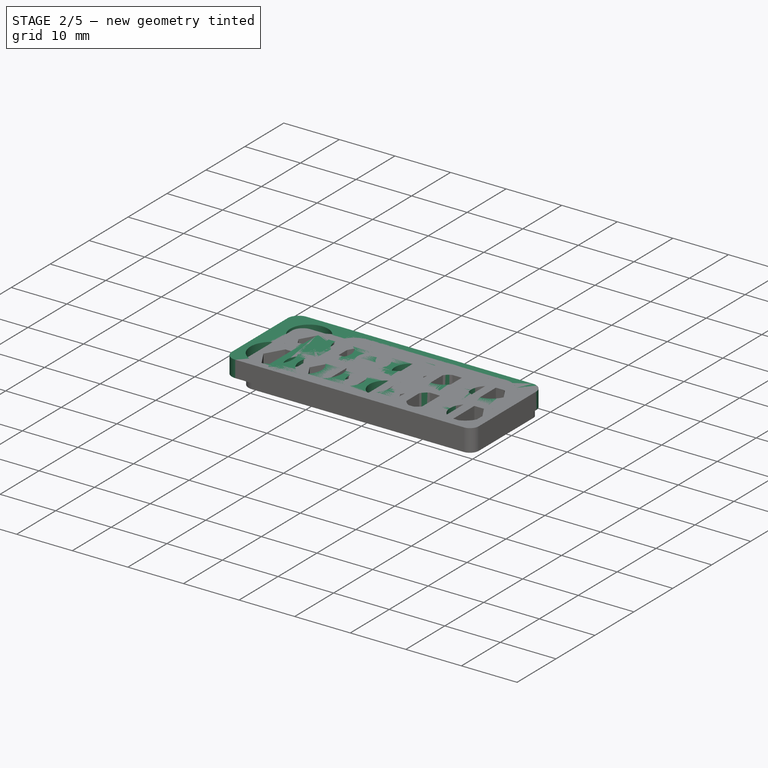
[diagram: stage 2 of 5 — iso view after this stage's code; geometry added in this stage tinted green]
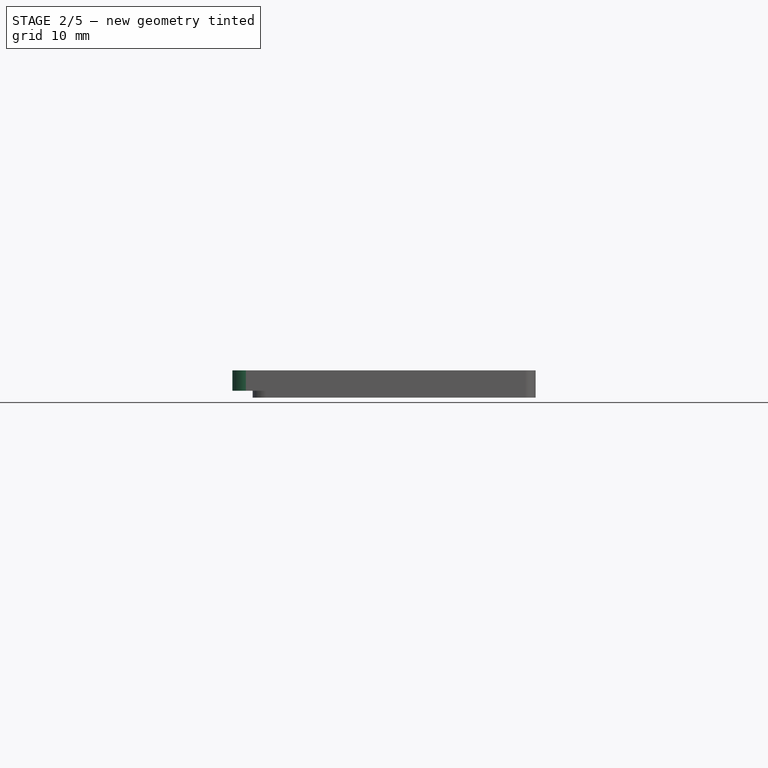
[diagram: stage 2 of 5 — front view after this stage's code; geometry added in this stage tinted green]
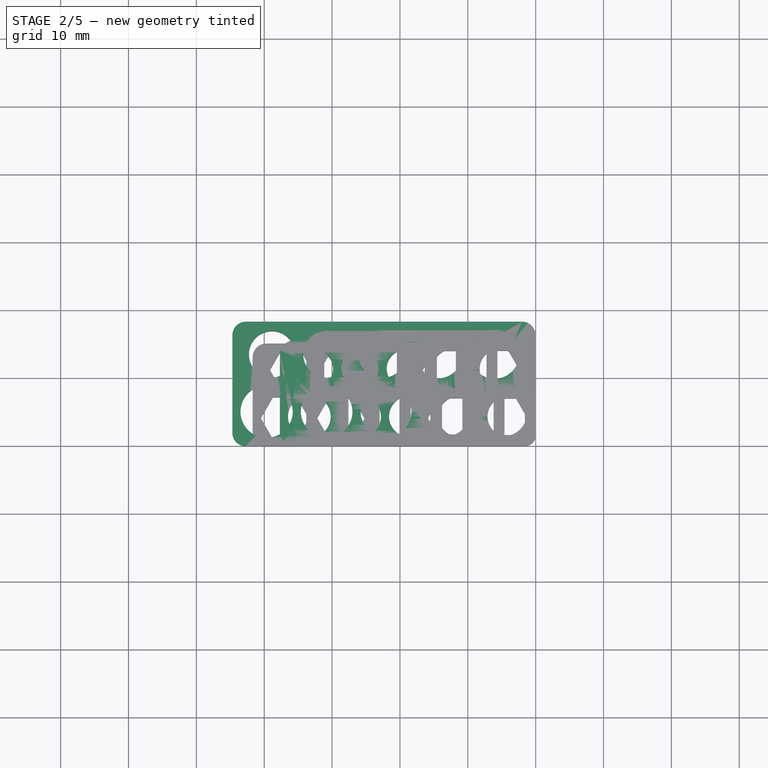
[diagram: stage 2 of 5 — top view after this stage's code; geometry added in this stage tinted green]
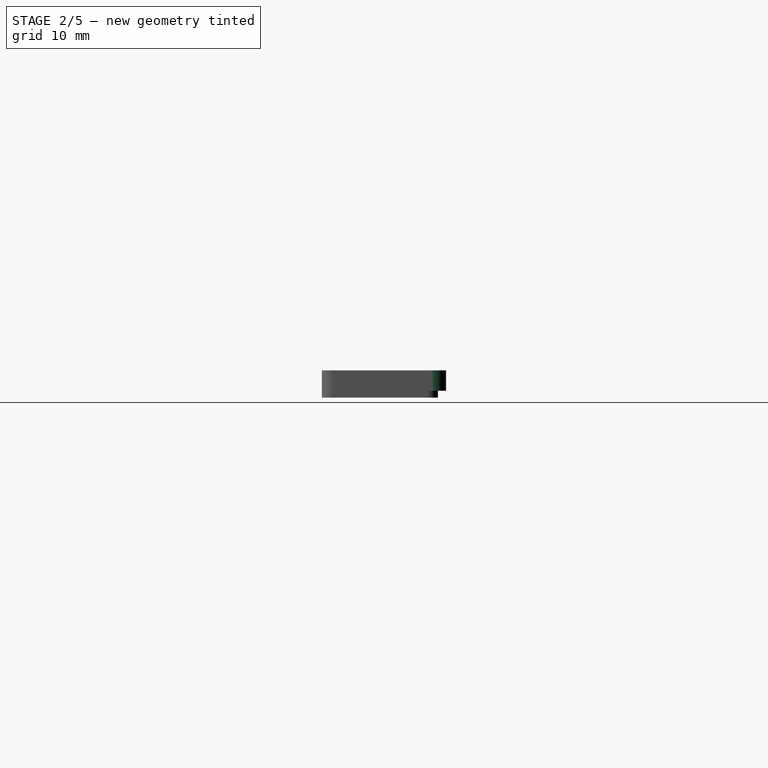
[diagram: stage 2 of 5 — right view after this stage's code; geometry added in this stage tinted green]
FEATURE [PartDesign::Body] Body003  label="M4S"
  Group = -> [Sketch003,Pad003]
  Origin = -> Origin003
  Placement = pos=(1,20,0) rot=(0,0,1;0rad)
  Tip = -> Pad003
FEATURE [Sketcher::SketchObject] Sketch004
  MapMode = 5
  Support = -> [XY_Plane004]
  expr: .Constraints.R1 = .Constraints.R0 + 0.05mm
  expr: .Constraints.R2 = .Constraints.R1 + 0.05mm
  expr: .Constraints.R3 = .Constraints.R2 + 0.05mm
  expr: .Constraints.R4 = .Constraints.R3 + 0.05mm
  expr: .Constraints.R5 = .Constraints.R4 + 0.05mm
  expr: .Constraints.R6 = .Constraints.R5 + 0.05mm
  expr: .Constraints.R8 = .Constraints.R7 + 0.05mm
  expr: .Constraints.R7 = .Constraints.R6 + 0.05mm
  expr: .Constraints.R9 = .Constraints.R8 + 0.05mm
  sketch-geometry (38):
    g0: Circle CenterX=-32.55 CenterY=11.4 CenterZ=0 NormalX=0 NormalY=0 NormalZ=1 AngleXU=0 Radius=2.7
    g1: LineSegment [constr] StartX=-29.85 StartY=11.4 StartZ=0 EndX=-28.65 EndY=11.4 EndZ=0
    g2: Circle CenterX=-25.9 CenterY=11.4 CenterZ=0 NormalX=0 NormalY=0 NormalZ=1 AngleXU=0 Radius=2.75
    g3: LineSegment [constr] StartX=-23.15 StartY=11.4 StartZ=0 EndX=-21.95 EndY=11.4 EndZ=0
    g4: Circle CenterX=-19.15 CenterY=11.4 CenterZ=0 NormalX=0 NormalY=0 NormalZ=1 AngleXU=0 Radius=2.8
    g5: Circle CenterX=-12.3 CenterY=11.4 CenterZ=0 NormalX=0 NormalY=0 NormalZ=1 AngleXU=0 Radius=2.85
    g6: Circle CenterX=-5.35 CenterY=11.4 CenterZ=0 NormalX=0 NormalY=0 NormalZ=1 AngleXU=0 Radius=2.9
    g7: Circle CenterX=-4.15 CenterY=4.35 CenterZ=0 NormalX=0 NormalY=0 NormalZ=1 AngleXU=0 Radius=2.95
    g8: Circle CenterX=-11.3 CenterY=4.35 CenterZ=0 NormalX=0 NormalY=0 NormalZ=1 AngleXU=0 Radius=3
    g9: Circle CenterX=-18.55 CenterY=4.35 CenterZ=0 NormalX=0 NormalY=0 NormalZ=1 AngleXU=0 Radius=3.05
    g10: LineSegment [constr] StartX=-16.35 StartY=11.4 StartZ=0 EndX=-15.15 EndY=11.4 EndZ=0
    g11: LineSegment [constr] StartX=-9.45 StartY=11.4 StartZ=0 EndX=-8.25 EndY=11.4 EndZ=0
    g12: Circle CenterX=-25.9 CenterY=4.35 CenterZ=0 NormalX=0 NormalY=0 NormalZ=1 AngleXU=0 Radius=3.1
    g13: Circle CenterX=-33.35 CenterY=4.35 CenterZ=0 NormalX=0 NormalY=0 NormalZ=1 AngleXU=0 Radius=3.15
    g14: GeomPoint X=-35.25 Y=11.4 Z=0
    g15: LineSegment StartX=-35.7 StartY=15.5 StartZ=0 EndX=-2 EndY=15.5 EndZ=0
    g16: LineSegment StartX=0 StartY=13.5 StartZ=0 EndX=0 EndY=2 EndZ=0
    g17: LineSegment StartX=-2 StartY=0 StartZ=0 EndX=-35.7 EndY=0 EndZ=0
    g18: LineSegment StartX=-37.7 StartY=2 StartZ=0 EndX=-37.7 EndY=13.5 EndZ=0
    g19: ArcOfCircle CenterX=-35.7 CenterY=13.5 CenterZ=0 NormalX=0 NormalY=0 NormalZ=1 AngleXU=0 Radius=2 StartAngle=1.5708 EndAngle=3.14159
    g20: ArcOfCircle CenterX=-2 CenterY=13.5 CenterZ=0 NormalX=0 NormalY=0 NormalZ=1 AngleXU=0 Radius=2 StartAngle=0 EndAngle=1.5708
    g21: ArcOfCircle CenterX=-2 CenterY=2 CenterZ=0 NormalX=0 NormalY=0 NormalZ=1 AngleXU=0 Radius=2 StartAngle=4.71239 EndAngle=6.28319
    g22: ArcOfCircle CenterX=-35.7 CenterY=2 CenterZ=0 NormalX=0 NormalY=0 NormalZ=1 AngleXU=0 Radius=2 StartAngle=3.14159 EndAngle=4.71239
    g23: LineSegment [constr] StartX=-30.2 StartY=4.35 StartZ=0 EndX=-29 EndY=4.35 EndZ=0
    g24: LineSegment [constr] StartX=-22.8 StartY=4.35 StartZ=0 EndX=-21.6 EndY=4.35 EndZ=0
    g25: LineSegment [constr] StartX=-15.5 StartY=4.35 StartZ=0 EndX=-14.3 EndY=4.35 EndZ=0
    g26: LineSegment [constr] StartX=-8.3 StartY=4.35 StartZ=0 EndX=-7.1 EndY=4.35 EndZ=0
    g27: LineSegment [constr] StartX=-18.85 StartY=11.4 StartZ=0 EndX=-18.85 EndY=4.35 EndZ=0
    g28: GeomPoint X=-2.45 Y=11.4 Z=0
    g29: GeomPoint X=-1.2 Y=4.35 Z=0
    g30: GeomPoint X=-36.5 Y=4.35 Z=0
    g31: LineSegment [constr] StartX=-5.35 StartY=14.3 StartZ=0 EndX=-5.35 EndY=15.5 EndZ=0
    g32: LineSegment [constr] StartX=-1.2 StartY=4.35 StartZ=0 EndX=0 EndY=4.35 EndZ=0
    g33: LineSegment [constr] StartX=-33.35 StartY=1.2 StartZ=0 EndX=-33.35 EndY=0 EndZ=0
    g34: LineSegment [constr] StartX=-36.5 StartY=4.35 StartZ=0 EndX=-37.7 EndY=4.35 EndZ=0
    g35: GeomPoint X=-5.35 Y=8.5 Z=0
    g36: LineSegment [constr] StartX=-5.35 StartY=8.5 StartZ=0 EndX=-5.35 EndY=7.3 EndZ=0
    g37: LineSegment [constr] StartX=-5.35 StartY=7.3 StartZ=0 EndX=-4.15 EndY=7.3 EndZ=0
  constraints (113):
    c: PointOnObject(g1,g0)
    c: Horizontal(g1)
    c: PointOnObject(g0,g1)
    c: PointOnObject(g2,g1)
    c: Radius(g0) = 2.7  'R0'
    c: DistanceX(g1,g1) = 1.2
    c: PointOnObject(g1,g2)
    c: Radius(g2) = 2.75  'R1'
    c: PointOnObject(g3,g2)
    c: Horizontal(g3)
    c: PointOnObject(g2,g3)
    c: Horizontal(g10)
    c: Horizontal(g11)
    c: Equal(g10,g11)
    c: Equal(g3,g1)
    c: PointOnObject(g4,g3)
    c: PointOnObject(g3,g4)
    c: Radius(g4) = 2.8  'R2'
    c: PointOnObject(g10,g4)
    c: PointOnObject(g4,g10)
    c: PointOnObject(g5,g10)
    c: PointOnObject(g10,g5)
    c: Radius(g5) = 2.85  'R3'
    c: Radius(g6) = 2.9  'R4'
    c: Radius(g7) = 2.95  'R5'
    c: Radius(g8) = 3  'R6'
    c: Radius(g9) = 3.05  'R7'
    c: Radius(g12) = 3.1  'R8'
    c: Radius(g13) = 3.15  'R9'
    c: PointOnObject(g11,g5)
    c: PointOnObject(g11,g6)
    c: PointOnObject(g5,g11)
    c: PointOnObject(g6,g11)
    c: PointOnObject(g14,g0)
    c: PointOnObject(g14,g1)
    c: Horizontal(g17)
    c: Vertical(g16)
    c: Vertical(g18)
    c: Tangent(g15,g19) = 1.5708
    c: Tangent(g18,g19) = 1.5708
    c: Tangent(g15,g20) = 1.5708
    c: Tangent(g16,g20) = 1.5708
    c: Tangent(g16,g21) = 1.5708
    c: Tangent(g17,g21) = 1.5708
    c: Tangent(g17,g22) = 1.5708
    c: Tangent(g18,g22) = 1.5708
    c: Equal(g19,g20)
    c: Equal(g20,g21)
    c: Equal(g21,g22)
    c: Radius(g19) = 2
    c: PointOnObject(g23,g13)
    c: PointOnObject(g23,g12)
    c: Horizontal(g23)
    c: PointOnObject(g24,g12)
    c: PointOnObject(g24,g9)
    c: Horizontal(g24)
    c: PointOnObject(g25,g9)
    c: PointOnObject(g25,g8)
    c: Horizontal(g25)
    c: PointOnObject(g26,g8)
    c: PointOnObject(g26,g7)
    c: Horizontal(g26)
    c: PointOnObject(g7,g26)
    c: PointOnObject(g8,g26)
    c: PointOnObject(g8,g25)
    c: PointOnObject(g9,g25)
    c: PointOnObject(g9,g24)
    c: PointOnObject(g12,g24)
    c: PointOnObject(g12,g23)
    c: PointOnObject(g13,g23)
    c: Vertical(g27)
    c: PointOnObject(g28,g6)
    c: PointOnObject(g29,g7)
    c: PointOnObject(g30,g23)
    c: PointOnObject(g29,g26)
    c: PointOnObject(g28,g11)
    c: PointOnObject(g31,g6)
    c: Vertical(g31)
    c: PointOnObject(g31,g15)
    c: PointOnObject(g6,g31)
    c: Symmetric(g14,g28,g27)
    c: Symmetric(g30,g29,g27)
    c: PointOnObject(g30,g13)
    c: Coincident(g32,g29)
    c: PointOnObject(g32,g16)
    c: Horizontal(g32)
    c: PointOnObject(g33,g13)
    c: PointOnObject(g33,g17)
    c: Vertical(g33)
    c: PointOnObject(g13,g33)
    c: Equal(g11,g26)
    c: Equal(g26,g25)
    c: Equal(g25,g24)
    c: Equal(g24,g23)
    c: Symmetric(g15,g15,g27)
    c: Equal(g23,g33)
    c: Coincident(g34,g30)
    c: Horizontal(g34)
    c: Equal(g33,g34)
    c: Equal(g34,g31)
    c: Equal(g31,g32)
    c: PointOnObject(g35,g6)
    c: Coincident(g36,g35)
    c: Vertical(g36)
    c: Coincident(g37,g36)
    c: PointOnObject(g37,g7)
    c: Horizontal(g37)
    c: Tangent(g37,g7)
    c: Equal(g32,g36)
    c: PointOnObject(g6,g36)
    c: Equal(g3,g10)
    c: PointOnObject(g17,g-1)
    c: PointOnObject(g16,g-2)
FEATURE [PartDesign::Pad] Pad004
  AllowMultiFace = false
  Length = 4
  Length2 = 100
  Profile = -> Sketch004
  Type = 0
FEATURE [PartDesign::Pad] Pad007
  AllowMultiFace = false
  Length = 3
  Length2 = 100
  Profile = -> Sketch006
  Refine = true
  Type = 0
FEATURE [PartDesign::Body] Body008
  BaseFeature = -> Pad
  Group = -> [Clone]
  Origin = -> Origin010
  Placement = pos=(-1,13,-2.9e-15) rot=(1,0,0;1.5708rad)
  Tip = -> Clone
FEATURE [PartDesign::FeatureBase] Clone001
  BaseFeature = -> Pad004
FEATURE [PartDesign::Body] Body009
  BaseFeature = -> Pad004
  Group = -> [Clone001]
  Origin = -> Origin011
  Placement = pos=(-1,8,-1.8e-15) rot=(1,0,0;1.5708rad)
  Tip = -> Clone001
FEATURE [PartDesign::FeatureBase] Clone002
  BaseFeature = -> Pad007
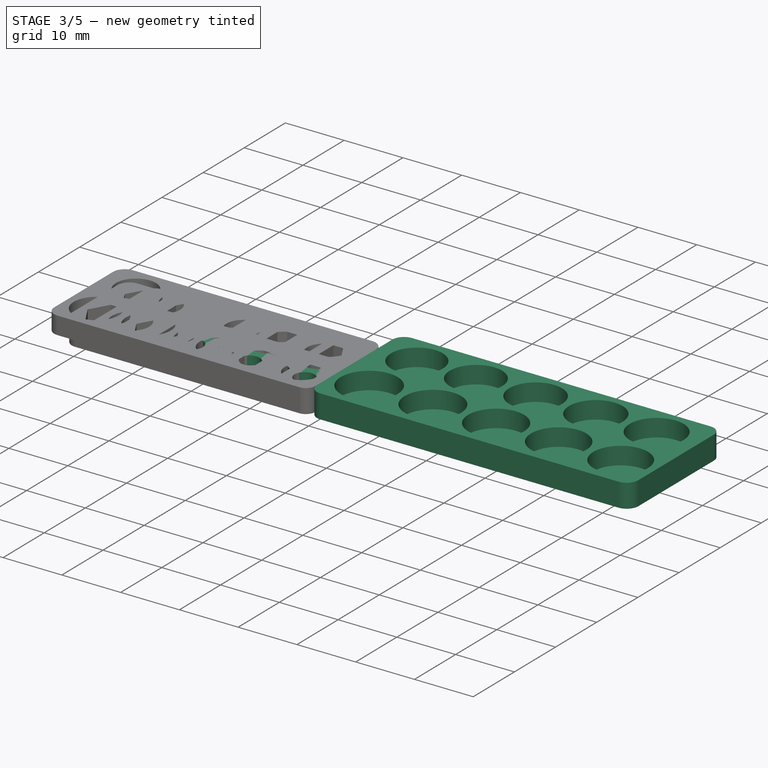
[diagram: stage 3 of 5 — iso view after this stage's code; geometry added in this stage tinted green]
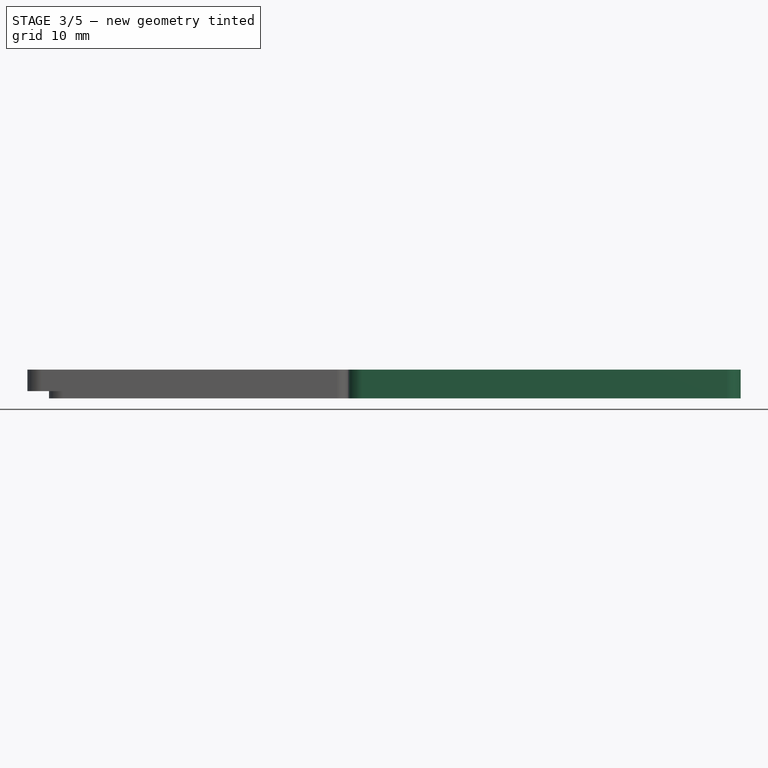
[diagram: stage 3 of 5 — front view after this stage's code; geometry added in this stage tinted green]
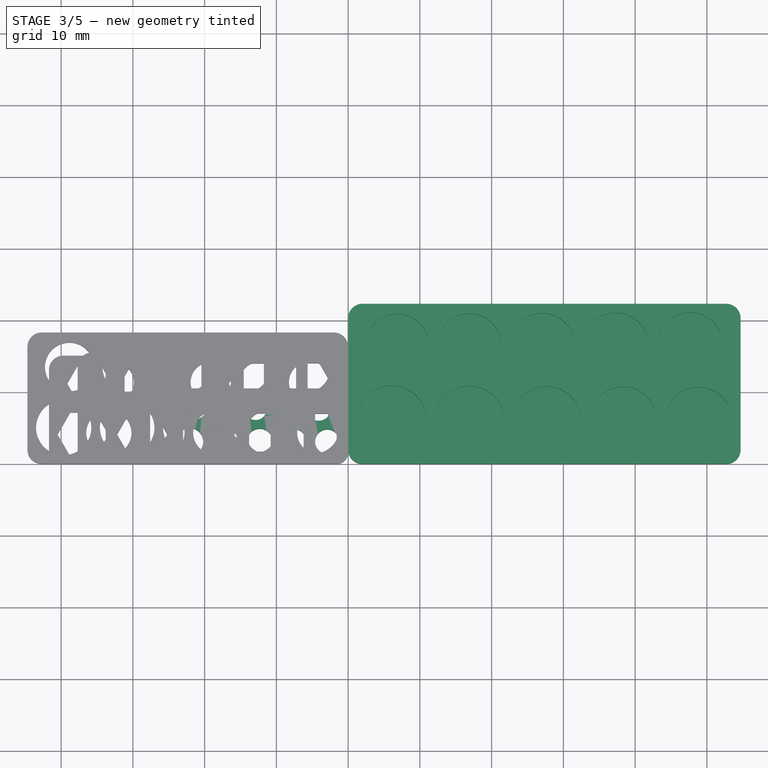
[diagram: stage 3 of 5 — top view after this stage's code; geometry added in this stage tinted green]
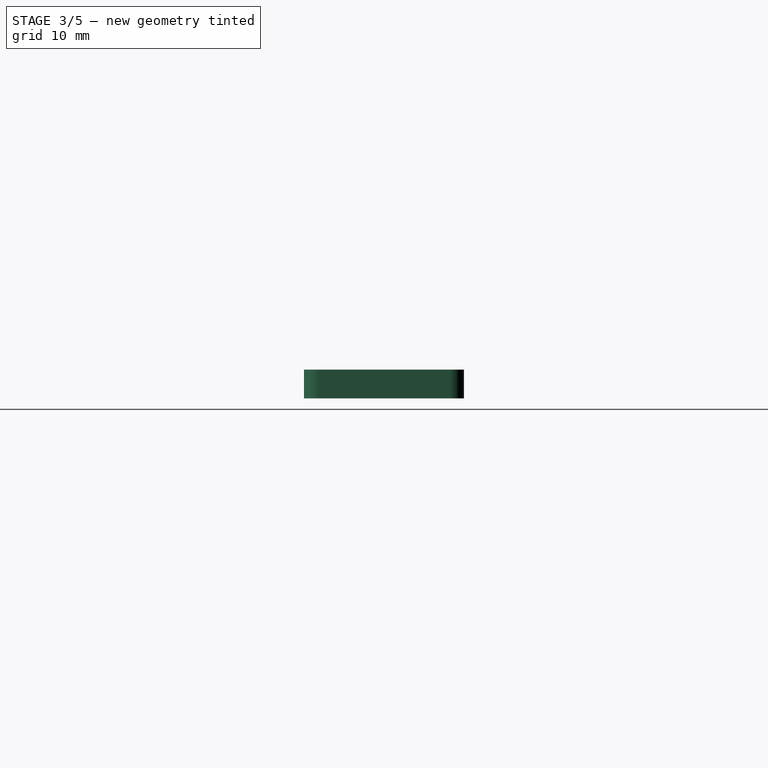
[diagram: stage 3 of 5 — right view after this stage's code; geometry added in this stage tinted green]
FEATURE [Sketcher::SketchObject] Sketch
  MapMode = 5
  Support = -> [XY_Plane]
  expr: .Constraints.R1 = .Constraints.R0 + 0.05mm
  expr: .Constraints.R2 = .Constraints.R1 + 0.05mm
  expr: .Constraints.R3 = .Constraints.R2 + 0.05mm
  expr: .Constraints.R4 = .Constraints.R3 + 0.05mm
  expr: .Constraints.R5 = .Constraints.R4 + 0.05mm
  expr: .Constraints.R6 = .Constraints.R5 + 0.05mm
  expr: .Constraints.R8 = .Constraints.R7 + 0.05mm
  expr: .Constraints.R7 = .Constraints.R6 + 0.05mm
  expr: .Constraints.R9 = .Constraints.R8 + 0.05mm
  sketch-geometry (38):
    g0: Circle CenterX=-21.3 CenterY=7.65 CenterZ=0 NormalX=0 NormalY=0 NormalZ=1 AngleXU=0 Radius=1.45
    g1: LineSegment [constr] StartX=-19.85 StartY=7.65 StartZ=0 EndX=-18.65 EndY=7.65 EndZ=0
    g2: Circle CenterX=-17.15 CenterY=7.65 CenterZ=0 NormalX=0 NormalY=0 NormalZ=1 AngleXU=0 Radius=1.5
    g3: LineSegment [constr] StartX=-15.65 StartY=7.65 StartZ=0 EndX=-14.45 EndY=7.65 EndZ=0
    g4: Circle CenterX=-12.9 CenterY=7.65 CenterZ=0 NormalX=0 NormalY=0 NormalZ=1 AngleXU=0 Radius=1.55
    g5: Circle CenterX=-8.55 CenterY=7.65 CenterZ=0 NormalX=0 NormalY=0 NormalZ=1 AngleXU=0 Radius=1.6
    g6: Circle CenterX=-4.1 CenterY=7.65 CenterZ=0 NormalX=0 NormalY=0 NormalZ=1 AngleXU=0 Radius=1.65
    g7: Circle CenterX=-2.9 CenterY=3.1 CenterZ=0 NormalX=0 NormalY=0 NormalZ=1 AngleXU=0 Radius=1.7
    g8: Circle CenterX=-7.55 CenterY=3.1 CenterZ=0 NormalX=0 NormalY=0 NormalZ=1 AngleXU=0 Radius=1.75
    g9: Circle CenterX=-12.3 CenterY=3.1 CenterZ=0 NormalX=0 NormalY=0 NormalZ=1 AngleXU=0 Radius=1.8
    g10: LineSegment [constr] StartX=-11.35 StartY=7.65 StartZ=0 EndX=-10.15 EndY=7.65 EndZ=0
    g11: LineSegment [constr] StartX=-6.95 StartY=7.65 StartZ=0 EndX=-5.75 EndY=7.65 EndZ=0
    g12: Circle CenterX=-17.15 CenterY=3.1 CenterZ=0 NormalX=0 NormalY=0 NormalZ=1 AngleXU=0 Radius=1.85
    g13: Circle CenterX=-22.1 CenterY=3.1 CenterZ=0 NormalX=0 NormalY=0 NormalZ=1 AngleXU=0 Radius=1.9
    g14: GeomPoint X=-22.75 Y=7.65 Z=0
    g15: LineSegment StartX=-23.2 StartY=10.5 StartZ=0 EndX=-2 EndY=10.5 EndZ=0
    g16: LineSegment StartX=0 StartY=8.5 StartZ=0 EndX=0 EndY=2 EndZ=0
    g17: LineSegment StartX=-2 StartY=0 StartZ=0 EndX=-23.2 EndY=0 EndZ=0
    g18: LineSegment StartX=-25.2 StartY=2 StartZ=0 EndX=-25.2 EndY=8.5 EndZ=0
    g19: ArcOfCircle CenterX=-23.2 CenterY=8.5 CenterZ=0 NormalX=0 NormalY=0 NormalZ=1 AngleXU=0 Radius=2 StartAngle=1.5708 EndAngle=3.14159
    g20: ArcOfCircle CenterX=-2 CenterY=8.5 CenterZ=0 NormalX=0 NormalY=0 NormalZ=1 AngleXU=0 Radius=2 StartAngle=0 EndAngle=1.5708
    g21: ArcOfCircle CenterX=-2 CenterY=2 CenterZ=0 NormalX=0 NormalY=0 NormalZ=1 AngleXU=0 Radius=2 StartAngle=4.71239 EndAngle=6.28319
    g22: ArcOfCircle CenterX=-23.2 CenterY=2 CenterZ=0 NormalX=0 NormalY=0 NormalZ=1 AngleXU=0 Radius=2 StartAngle=3.14159 EndAngle=4.71239
    g23: LineSegment [constr] StartX=-20.2 StartY=3.1 StartZ=0 EndX=-19 EndY=3.1 EndZ=0
    g24: LineSegment [constr] StartX=-15.3 StartY=3.1 StartZ=0 EndX=-14.1 EndY=3.1 EndZ=0
    g25: LineSegment [constr] StartX=-10.5 StartY=3.1 StartZ=0 EndX=-9.3 EndY=3.1 EndZ=0
    g26: LineSegment [constr] StartX=-5.8 StartY=3.1 StartZ=0 EndX=-4.6 EndY=3.1 EndZ=0
    g27: LineSegment [constr] StartX=-12.6 StartY=7.65 StartZ=0 EndX=-12.6 EndY=3.1 EndZ=0
    g28: GeomPoint X=-2.45 Y=7.65 Z=0
    g29: GeomPoint X=-1.2 Y=3.1 Z=0
    g30: GeomPoint X=-24 Y=3.1 Z=0
    g31: LineSegment [constr] StartX=-4.1 StartY=9.3 StartZ=0 EndX=-4.1 EndY=10.5 EndZ=0
    g32: LineSegment [constr] StartX=-1.2 StartY=3.1 StartZ=0 EndX=0 EndY=3.1 EndZ=0
    g33: LineSegment [constr] StartX=-22.1 StartY=1.2 StartZ=0 EndX=-22.1 EndY=0 EndZ=0
    g34: LineSegment [constr] StartX=-24 StartY=3.1 StartZ=0 EndX=-25.2 EndY=3.1 EndZ=0
    g35: GeomPoint X=-4.1 Y=6 Z=0
    g36: LineSegment [constr] StartX=-4.1 StartY=6 StartZ=0 EndX=-4.1 EndY=4.8 EndZ=0
    g37: LineSegment [constr] StartX=-4.1 StartY=4.8 StartZ=0 EndX=-2.9 EndY=4.8 EndZ=0
  constraints (113):
    c: PointOnObject(g1,g0)
    c: Horizontal(g1)
    c: PointOnObject(g0,g1)
    c: PointOnObject(g2,g1)
    c: Radius(g0) = 1.45  'R0'
    c: DistanceX(g1,g1) = 1.2
    c: PointOnObject(g1,g2)
    c: Radius(g2) = 1.5  'R1'
    c: PointOnObject(g3,g2)
    c: Horizontal(g3)
    c: PointOnObject(g2,g3)
    c: Horizontal(g10)
    c: Horizontal(g11)
    c: Equal(g10,g11)
    c: Equal(g3,g1)
    c: PointOnObject(g4,g3)
    c: PointOnObject(g3,g4)
    c: Radius(g4) = 1.55  'R2'
    c: PointOnObject(g10,g4)
    c: PointOnObject(g4,g10)
    c: PointOnObject(g5,g10)
    c: PointOnObject(g10,g5)
    c: Radius(g5) = 1.6  'R3'
    c: Radius(g6) = 1.65  'R4'
    c: Radius(g7) = 1.7  'R5'
    c: Radius(g8) = 1.75  'R6'
    c: Radius(g9) = 1.8  'R7'
    c: Radius(g12) = 1.85  'R8'
    c: Radius(g13) = 1.9  'R9'
    c: PointOnObject(g11,g5)
    c: PointOnObject(g11,g6)
    c: PointOnObject(g5,g11)
    c: PointOnObject(g6,g11)
    c: PointOnObject(g14,g0)
    c: PointOnObject(g14,g1)
    c: Horizontal(g17)
    c: Vertical(g16)
    c: Vertical(g18)
    c: Tangent(g15,g19) = 1.5708
    c: Tangent(g18,g19) = 1.5708
    c: Tangent(g15,g20) = 1.5708
    c: Tangent(g16,g20) = 1.5708
    c: Tangent(g16,g21) = 1.5708
    c: Tangent(g17,g21) = 1.5708
    c: Tangent(g17,g22) = 1.5708
    c: Tangent(g18,g22) = 1.5708
    c: Equal(g19,g20)
    c: Equal(g20,g21)
    c: Equal(g21,g22)
    c: Radius(g19) = 2
    c: PointOnObject(g23,g13)
    c: PointOnObject(g23,g12)
    c: Horizontal(g23)
    c: PointOnObject(g24,g12)
    c: PointOnObject(g24,g9)
    c: Horizontal(g24)
    c: PointOnObject(g25,g9)
    c: PointOnObject(g25,g8)
    c: Horizontal(g25)
    c: PointOnObject(g26,g8)
    c: PointOnObject(g26,g7)
    c: Horizontal(g26)
    c: PointOnObject(g7,g26)
    c: PointOnObject(g8,g26)
    c: PointOnObject(g8,g25)
    c: PointOnObject(g9,g25)
    c: PointOnObject(g9,g24)
    c: PointOnObject(g12,g24)
    c: PointOnObject(g12,g23)
    c: PointOnObject(g13,g23)
    c: Vertical(g27)
    c: PointOnObject(g28,g6)
    c: PointOnObject(g29,g7)
    c: PointOnObject(g30,g23)
    c: PointOnObject(g29,g26)
    c: PointOnObject(g28,g11)
    c: PointOnObject(g31,g6)
    c: Vertical(g31)
    c: PointOnObject(g31,g15)
    c: PointOnObject(g6,g31)
    c: Symmetric(g14,g28,g27)
    c: Symmetric(g30,g29,g27)
    c: PointOnObject(g30,g13)
    c: Coincident(g32,g29)
    c: PointOnObject(g32,g16)
    c: Horizontal(g32)
    c: PointOnObject(g33,g13)
    c: PointOnObject(g33,g17)
    c: Vertical(g33)
    c: PointOnObject(g13,g33)
    c: Equal(g11,g26)
    c: Equal(g26,g25)
    c: Equal(g25,g24)
    c: Equal(g24,g23)
    c: Symmetric(g15,g15,g27)
    c: Equal(g23,g33)
    c: Coincident(g34,g30)
    c: Horizontal(g34)
    c: Equal(g33,g34)
    c: Equal(g34,g31)
    c: Equal(g31,g32)
    c: PointOnObject(g35,g6)
    c: Coincident(g36,g35)
    c: Vertical(g36)
    c: Coincident(g37,g36)
    c: PointOnObject(g37,g7)
    c: Horizontal(g37)
    c: Tangent(g37,g7)
    c: Equal(g32,g36)
    c: PointOnObject(g6,g36)
    c: Equal(g3,g10)
    c: PointOnObject(g17,g-1)
    c: PointOnObject(g16,g-2)
FEATURE [PartDesign::Pad] Pad
  AllowMultiFace = false
  Length = 4
  Length2 = 100
  Profile = -> Sketch
  Type = 0
FEATURE [PartDesign::Body] Body006  label="M3W"
  Group = -> [Pad007,Sketch006]
  Origin = -> Origin006
  Placement = pos=(-1,-15,0) rot=(0,0,1;0rad)
  Tip = -> Pad007
FEATURE [PartDesign::FeatureBase] Clone
  BaseFeature = -> Pad
FEATURE [PartDesign::Body] Body015
  BaseFeature = -> Pad002
  Group = -> [Clone007]
  Origin = -> Origin017
  Placement = pos=(1,-2,0) rot=(1,0,0;1.5708rad)
  Tip = -> Clone007
FEATURE [Sketcher::SketchObject] Sketch008
  AttachmentOffset = pos=(0,0,1) rot=(0,0,1;0rad)
  MapMode = 5
  Placement = pos=(0,0,1) rot=(0,0,1;0rad)
  Support = -> [XY_Plane007]
  expr: .Constraints.R1 = .Constraints.R0 + 0.05mm
  expr: .Constraints.R2 = .Constraints.R1 + 0.05mm
  expr: .Constraints.R3 = .Constraints.R2 + 0.05mm
  expr: .Constraints.R4 = .Constraints.R3 + 0.05mm
  expr: .Constraints.R5 = .Constraints.R4 + 0.05mm
  expr: .Constraints.R6 = .Constraints.R5 + 0.05mm
  expr: .Constraints.R8 = .Constraints.R7 + 0.05mm
  expr: .Constraints.R7 = .Constraints.R6 + 0.05mm
  expr: .Constraints.R9 = .Constraints.R8 + 0.05mm
  sketch-geometry (38):
    g0: Circle CenterX=6.85 CenterY=16.5 CenterZ=0 NormalX=0 NormalY=0 NormalZ=1 AngleXU=0 Radius=4.4
    g1: LineSegment [constr] StartX=11.25 StartY=16.5 StartZ=0 EndX=12.45 EndY=16.5 EndZ=0
    g2: Circle CenterX=16.9 CenterY=16.5 CenterZ=0 NormalX=0 NormalY=0 NormalZ=1 AngleXU=0 Radius=4.45
    g3: LineSegment [constr] StartX=21.35 StartY=16.5 StartZ=0 EndX=22.55 EndY=16.5 EndZ=0
    g4: Circle CenterX=27.05 CenterY=16.5 CenterZ=0 NormalX=0 NormalY=0 NormalZ=1 AngleXU=0 Radius=4.5
    g5: Circle CenterX=37.3 CenterY=16.5 CenterZ=0 NormalX=0 NormalY=0 NormalZ=1 AngleXU=0 Radius=4.55
    g6: Circle CenterX=47.65 CenterY=16.5 CenterZ=0 NormalX=0 NormalY=0 NormalZ=1 AngleXU=0 Radius=4.6
    g7: Circle CenterX=48.85 CenterY=6.05 CenterZ=0 NormalX=0 NormalY=0 NormalZ=1 AngleXU=0 Radius=4.65
    g8: Circle CenterX=38.3 CenterY=6.05 CenterZ=0 NormalX=0 NormalY=0 NormalZ=1 AngleXU=0 Radius=4.7
    g9: Circle CenterX=27.65 CenterY=6.05 CenterZ=0 NormalX=0 NormalY=0 NormalZ=1 AngleXU=0 Radius=4.75
    g10: LineSegment [constr] StartX=31.55 StartY=16.5 StartZ=0 EndX=32.75 EndY=16.5 EndZ=0
    g11: LineSegment [constr] StartX=41.85 StartY=16.5 StartZ=0 EndX=43.05 EndY=16.5 EndZ=0
    g12: Circle CenterX=16.9 CenterY=6.05 CenterZ=0 NormalX=0 NormalY=0 NormalZ=1 AngleXU=0 Radius=4.8
    g13: Circle CenterX=6.05 CenterY=6.05 CenterZ=0 NormalX=0 NormalY=0 NormalZ=1 AngleXU=0 Radius=4.85
    g14: GeomPoint X=2.45 Y=16.5 Z=0
    g15: LineSegment StartX=2 StartY=22.3 StartZ=0 EndX=52.7 EndY=22.3 EndZ=0
    g16: LineSegment StartX=54.7 StartY=20.3 StartZ=0 EndX=54.7 EndY=2 EndZ=0
    g17: LineSegment StartX=52.7 StartY=0 StartZ=0 EndX=2 EndY=0 EndZ=0
    g18: LineSegment StartX=0 StartY=2 StartZ=0 EndX=0 EndY=20.3 EndZ=0
    g19: ArcOfCircle CenterX=2 CenterY=20.3 CenterZ=0 NormalX=0 NormalY=0 NormalZ=1 AngleXU=0 Radius=2 StartAngle=1.5708 EndAngle=3.14159
    g20: ArcOfCircle CenterX=52.7 CenterY=20.3 CenterZ=0 NormalX=0 NormalY=0 NormalZ=1 AngleXU=0 Radius=2 StartAngle=3e-16 EndAngle=1.5708
    g21: ArcOfCircle CenterX=52.7 CenterY=2 CenterZ=0 NormalX=0 NormalY=0 NormalZ=1 AngleXU=0 Radius=2 StartAngle=4.71239 EndAngle=6.28319
    g22: ArcOfCircle CenterX=2 CenterY=2 CenterZ=0 NormalX=0 NormalY=0 NormalZ=1 AngleXU=0 Radius=2 StartAngle=3.14159 EndAngle=4.71239
    g23: LineSegment [constr] StartX=10.9 StartY=6.05 StartZ=0 EndX=12.1 EndY=6.05 EndZ=0
    g24: LineSegment [constr] StartX=21.7 StartY=6.05 StartZ=0 EndX=22.9 EndY=6.05 EndZ=0
    g25: LineSegment [constr] StartX=32.4 StartY=6.05 StartZ=0 EndX=33.6 EndY=6.05 EndZ=0
    g26: LineSegment [constr] StartX=43 StartY=6.05 StartZ=0 EndX=44.2 EndY=6.05 EndZ=0
    g27: LineSegment [constr] StartX=27.35 StartY=16.5 StartZ=0 EndX=27.35 EndY=6.05 EndZ=0
    g28: GeomPoint X=52.25 Y=16.5 Z=0
    g29: GeomPoint X=53.5 Y=6.05 Z=0
    g30: GeomPoint X=1.2 Y=6.05 Z=0
    g31: LineSegment [constr] StartX=47.65 StartY=21.1 StartZ=0 EndX=47.65 EndY=22.3 EndZ=0
    g32: LineSegment [constr] StartX=53.5 StartY=6.05 StartZ=0 EndX=54.7 EndY=6.05 EndZ=0
    g33: LineSegment [constr] StartX=6.05 StartY=1.2 StartZ=0 EndX=6.05 EndY=0 EndZ=0
    g34: LineSegment [constr] StartX=1.2 StartY=6.05 StartZ=0 EndX=5.8e-15 EndY=6.05 EndZ=0
    g35: GeomPoint X=47.65 Y=11.9 Z=0
    g36: LineSegment [constr] StartX=47.65 StartY=11.9 StartZ=0 EndX=47.65 EndY=10.7 EndZ=0
    g37: LineSegment [constr] StartX=47.65 StartY=10.7 StartZ=0 EndX=48.85 EndY=10.7 EndZ=0
  constraints (113):
    c: PointOnObject(g1,g0)
    c: Horizontal(g1)
    c: PointOnObject(g0,g1)
    c: PointOnObject(g2,g1)
    c: Radius(g0) = 4.4  'R0'
    c: DistanceX(g1,g1) = 1.2
    c: PointOnObject(g1,g2)
    c: Radius(g2) = 4.45  'R1'
    c: PointOnObject(g3,g2)
    c: Horizontal(g3)
    c: PointOnObject(g2,g3)
    c: Horizontal(g10)
    c: Horizontal(g11)
    c: Equal(g10,g11)
    c: Equal(g3,g1)
    c: PointOnObject(g4,g3)
    c: PointOnObject(g3,g4)
    c: Radius(g4) = 4.5  'R2'
    c: PointOnObject(g10,g4)
    c: PointOnObject(g4,g10)
    c: PointOnObject(g5,g10)
    c: PointOnObject(g10,g5)
    c: Radius(g5) = 4.55  'R3'
    c: Radius(g6) = 4.6  'R4'
    c: Radius(g7) = 4.65  'R5'
    c: Radius(g8) = 4.7  'R6'
    c: Radius(g9) = 4.75  'R7'
    c: Radius(g12) = 4.8  'R8'
    c: Radius(g13) = 4.85  'R9'
    c: PointOnObject(g11,g5)
    c: PointOnObject(g11,g6)
    c: PointOnObject(g5,g11)
    c: PointOnObject(g6,g11)
    c: PointOnObject(g14,g0)
    c: PointOnObject(g14,g1)
    c: Horizontal(g17)
    c: Vertical(g16)
    c: Vertical(g18)
    c: Tangent(g15,g19) = 1.5708
    c: Tangent(g18,g19) = 1.5708
    c: Tangent(g15,g20) = 1.5708
    c: Tangent(g16,g20) = 1.5708
    c: Tangent(g16,g21) = 1.5708
    c: Tangent(g17,g21) = 1.5708
    c: Tangent(g17,g22) = 1.5708
    c: Tangent(g18,g22) = 1.5708
    c: Equal(g19,g20)
    c: Equal(g20,g21)
    c: Equal(g21,g22)
    c: Radius(g19) = 2
    c: PointOnObject(g23,g13)
    c: PointOnObject(g23,g12)
    c: Horizontal(g23)
    c: PointOnObject(g24,g12)
    c: PointOnObject(g24,g9)
    c: Horizontal(g24)
    c: PointOnObject(g25,g9)
    c: PointOnObject(g25,g8)
    c: Horizontal(g25)
    c: PointOnObject(g26,g8)
    c: PointOnObject(g26,g7)
    c: Horizontal(g26)
    c: PointOnObject(g7,g26)
    c: PointOnObject(g8,g26)
    c: PointOnObject(g8,g25)
    c: PointOnObject(g9,g25)
    c: PointOnObject(g9,g24)
    c: PointOnObject(g12,g24)
    c: PointOnObject(g12,g23)
    c: PointOnObject(g13,g23)
    c: Vertical(g27)
    c: PointOnObject(g28,g6)
    c: PointOnObject(g29,g7)
    c: PointOnObject(g30,g23)
    c: PointOnObject(g29,g26)
    c: PointOnObject(g28,g11)
    c: PointOnObject(g31,g6)
    c: Vertical(g31)
    c: PointOnObject(g31,g15)
    c: PointOnObject(g6,g31)
    c: Symmetric(g14,g28,g27)
    c: Symmetric(g30,g29,g27)
    c: PointOnObject(g30,g13)
    c: Coincident(g32,g29)
    c: PointOnObject(g32,g16)
    c: Horizontal(g32)
    c: PointOnObject(g33,g13)
    c: PointOnObject(g33,g17)
    c: Vertical(g33)
    c: PointOnObject(g13,g33)
    c: Equal(g11,g26)
    c: Equal(g26,g25)
    c: Equal(g25,g24)
    c: Equal(g24,g23)
    c: Symmetric(g15,g15,g27)
    c: Equal(g23,g33)
    c: Coincident(g34,g30)
    c: Horizontal(g34)
    c: Equal(g33,g34)
    c: Equal(g34,g31)
    c: Equal(g31,g32)
    c: PointOnObject(g35,g6)
    c: Coincident(g36,g35)
    c: Vertical(g36)
    c: Coincident(g37,g36)
    c: PointOnObject(g37,g7)
    c: Horizontal(g37)
    c: Tangent(g37,g7)
    c: Equal(g32,g36)
    c: PointOnObject(g6,g36)
    c: Equal(g3,g10)
    c: PointOnObject(g17,g-1)
    c: PointOnObject(g18,g-2)
FEATURE [Sketcher::SketchObject] Sketch009
  ExternalGeometry = -> [Sketch008]
  MapMode = 5
  Support = -> [XY_Plane007]
  sketch-geometry (8):
    g0: ArcOfCircle CenterX=2 CenterY=2 CenterZ=0 NormalX=0 NormalY=0 NormalZ=1 AngleXU=0 Radius=2 StartAngle=3.14159 EndAngle=4.71239
    g1: ArcOfCircle CenterX=2 CenterY=20.3 CenterZ=0 NormalX=0 NormalY=0 NormalZ=1 AngleXU=0 Radius=2 StartAngle=1.5708 EndAngle=3.14159
    g2: ArcOfCircle CenterX=52.7 CenterY=20.3 CenterZ=0 NormalX=0 NormalY=0 NormalZ=1 AngleXU=0 Radius=2 StartAngle=-9e-16 EndAngle=1.5708
    g3: ArcOfCircle CenterX=52.7 CenterY=2 CenterZ=0 NormalX=0 NormalY=0 NormalZ=1 AngleXU=0 Radius=2 StartAngle=4.71239 EndAngle=6.28319
    g4: LineSegment StartX=2 StartY=22.3 StartZ=0 EndX=52.7 EndY=22.3 EndZ=0
    g5: LineSegment StartX=54.7 StartY=20.3 StartZ=0 EndX=54.7 EndY=2 EndZ=0
    g6: LineSegment StartX=52.7 StartY=-1.3766e-12 StartZ=0 EndX=2 EndY=0 EndZ=0
    g7: LineSegment StartX=0 StartY=2 StartZ=0 EndX=0 EndY=20.3 EndZ=0
  constraints (20):
    c: Coincident(g0,g-6)
    c: Coincident(g0,g-6)
    c: Coincident(g0,g-6)
    c: Coincident(g1,g-5)
    c: Coincident(g1,g-5)
    c: Coincident(g1,g-5)
    c: Coincident(g2,g-3)
    c: Coincident(g2,g-3)
    c: Coincident(g2,g-3)
    c: Coincident(g3,g-4)
    c: Coincident(g3,g-4)
    c: Coincident(g3,g-4)
    c: Coincident(g4,g1)
    c: Coincident(g4,g2)
    c: Coincident(g5,g2)
    c: Coincident(g5,g3)
    c: Coincident(g6,g3)
    c: Coincident(g6,g0)
    c: Coincident(g7,g0)
    c: Coincident(g7,g1)
FEATURE [PartDesign::Pad] Pad008
  AllowMultiFace = false
  Length = 1
  Length2 = 100
  Profile = -> Sketch009
  Type = 0
FEATURE [PartDesign::Pad] Pad009
  AllowMultiFace = false
  BaseFeature = -> Pad008
  Length = 3
  Length2 = 100
  Profile = -> Sketch008
  Refine = true
  Type = 0
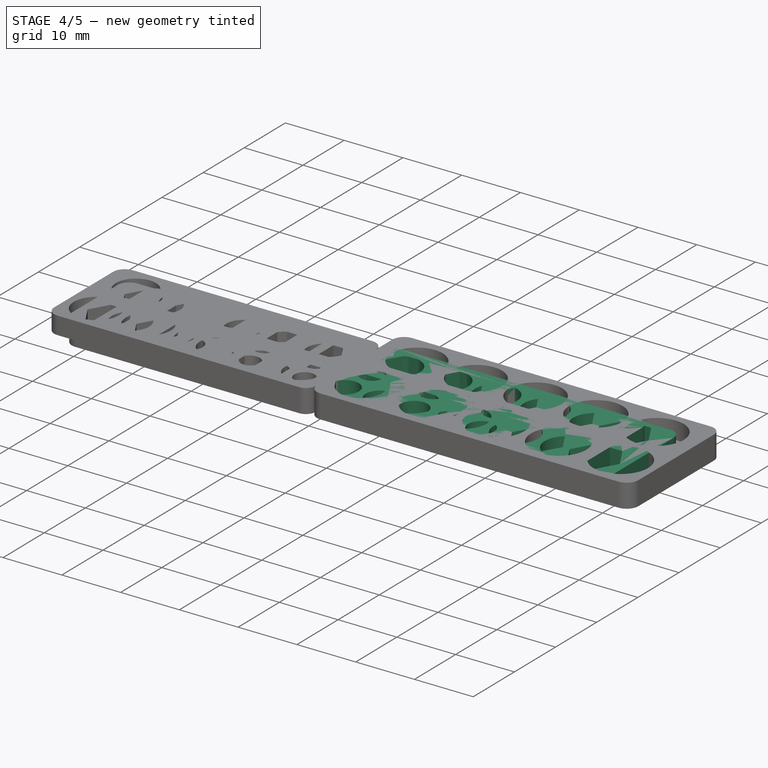
[diagram: stage 4 of 5 — iso view after this stage's code; geometry added in this stage tinted green]
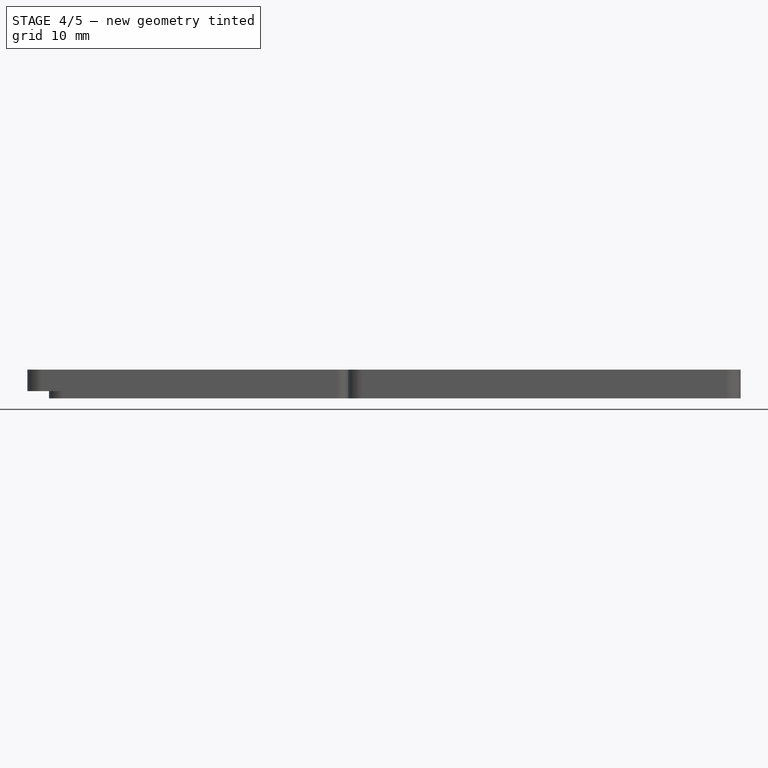
[diagram: stage 4 of 5 — front view after this stage's code; geometry added in this stage tinted green]
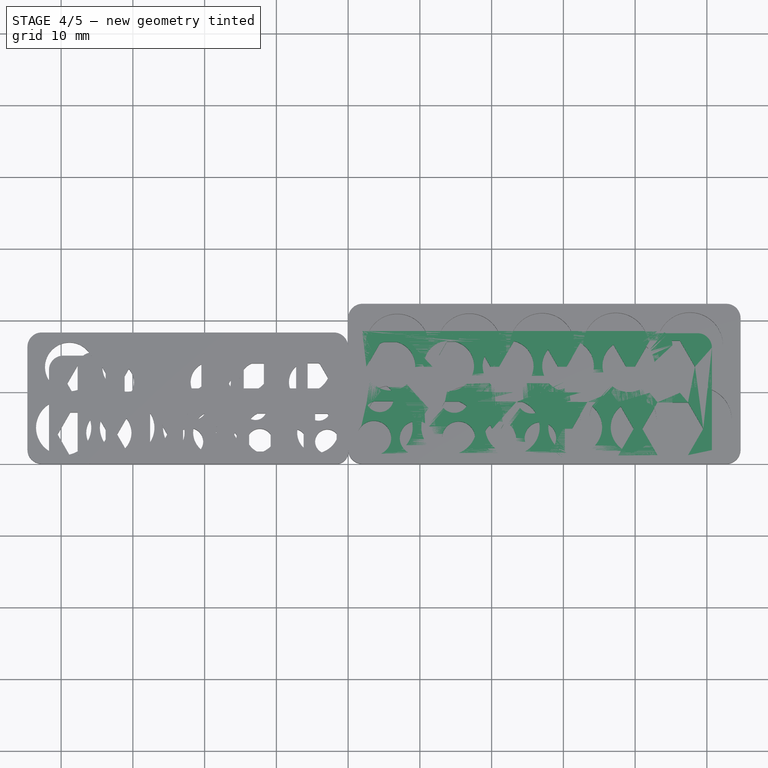
[diagram: stage 4 of 5 — top view after this stage's code; geometry added in this stage tinted green]
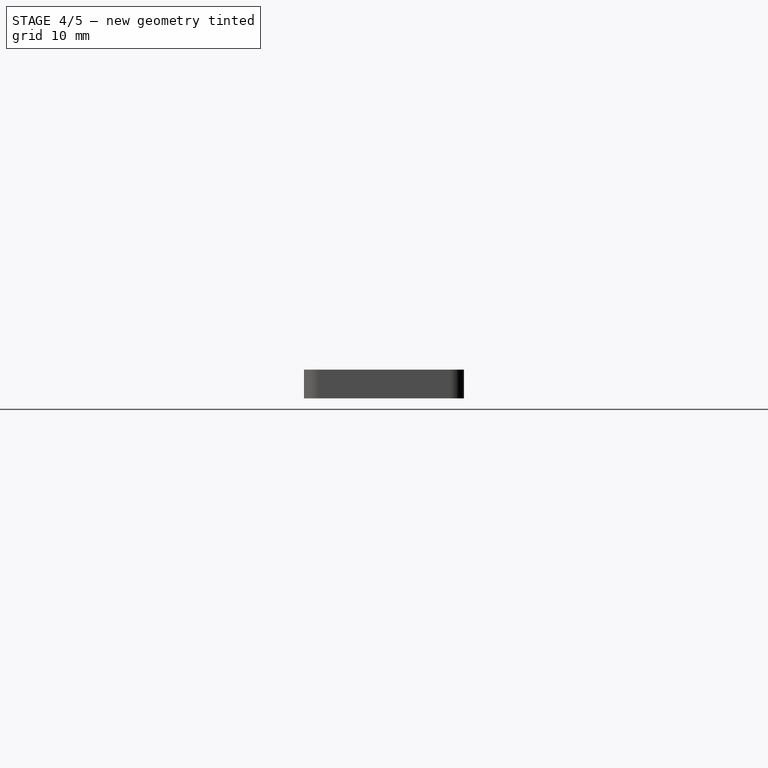
[diagram: stage 4 of 5 — right view after this stage's code; geometry added in this stage tinted green]
FEATURE [PartDesign::Body] Body001  label="M3N"
  Group = -> [Pad001,Sketch001]
  Origin = -> Origin001
  Placement = pos=(-1,-31,0) rot=(0,0,1;0rad)
  Tip = -> Pad001
FEATURE [Sketcher::SketchObject] Sketch002
  MapMode = 5
  Support = -> [XY_Plane002]
  expr: .Constraints.R6 = .Constraints.R5 + 0.05mm
  expr: .Constraints.R7 = .Constraints.R6 + 0.05mm
  expr: .Constraints.R5 = .Constraints.R4 + 0.05mm
  expr: .Constraints.R3 = .Constraints.R2 + 0.05mm
  expr: .Constraints.R4 = .Constraints.R3 + 0.05mm
  expr: .Constraints.R1 = .Constraints.R0 + 0.05mm
  expr: .Constraints.R2 = .Constraints.R1 + 0.05mm
  expr: .Constraints.R8 = .Constraints.R7 + 0.05mm
  expr: Constraints[229] = .Constraints.R8 + 0.05mm
  sketch-geometry (92):
    g0: LineSegment StartX=17.825 StartY=10.021 StartZ=0 EndX=19.85 EndY=13.5284 EndZ=0
    g1: LineSegment StartX=19.85 StartY=13.5284 StartZ=0 EndX=17.825 EndY=17.0358 EndZ=0
    g2: LineSegment StartX=17.825 StartY=17.0358 StartZ=0 EndX=13.775 EndY=17.0358 EndZ=0
    g3: LineSegment StartX=13.775 StartY=17.0358 StartZ=0 EndX=11.75 EndY=13.5284 EndZ=0
    g4: LineSegment StartX=11.75 StartY=13.5284 StartZ=0 EndX=13.775 EndY=10.021 EndZ=0
    g5: LineSegment StartX=13.775 StartY=10.021 StartZ=0 EndX=17.825 EndY=10.021 EndZ=0
    g6: Circle [constr] CenterX=15.8 CenterY=13.5284 CenterZ=0 NormalX=0 NormalY=0 NormalZ=1 AngleXU=0 Radius=4.05
    g7: LineSegment StartX=27.2 StartY=9.97772 StartZ=0 EndX=29.25 EndY=13.5284 EndZ=0
    g8: LineSegment StartX=29.25 StartY=13.5284 StartZ=0 EndX=27.2 EndY=17.0791 EndZ=0
    g9: LineSegment StartX=27.2 StartY=17.0791 StartZ=0 EndX=23.1 EndY=17.0791 EndZ=0
    g10: LineSegment StartX=23.1 StartY=17.0791 StartZ=0 EndX=21.05 EndY=13.5284 EndZ=0
    g11: LineSegment StartX=21.05 StartY=13.5284 StartZ=0 EndX=23.1 EndY=9.97772 EndZ=0
    g12: LineSegment StartX=23.1 StartY=9.97772 StartZ=0 EndX=27.2 EndY=9.97772 EndZ=0
    g13: Circle [constr] CenterX=25.15 CenterY=13.5284 CenterZ=0 NormalX=0 NormalY=0 NormalZ=1 AngleXU=0 Radius=4.1
    g14: LineSegment StartX=36.675 StartY=9.93442 StartZ=0 EndX=38.75 EndY=13.5284 EndZ=0
    g15: LineSegment StartX=38.75 StartY=13.5284 StartZ=0 EndX=36.675 EndY=17.1224 EndZ=0
    g16: LineSegment StartX=36.675 StartY=17.1224 StartZ=0 EndX=32.525 EndY=17.1224 EndZ=0
    g17: LineSegment StartX=32.525 StartY=17.1224 StartZ=0 EndX=30.45 EndY=13.5284 EndZ=0
    g18: LineSegment StartX=30.45 StartY=13.5284 StartZ=0 EndX=32.525 EndY=9.93442 EndZ=0
    g19: LineSegment StartX=32.525 StartY=9.93442 StartZ=0 EndX=36.675 EndY=9.93442 EndZ=0
    g20: Circle [constr] CenterX=34.6 CenterY=13.5284 CenterZ=0 NormalX=0 NormalY=0 NormalZ=1 AngleXU=0 Radius=4.15
    g21: LineSegment StartX=46.25 StartY=9.89112 StartZ=0 EndX=48.35 EndY=13.5284 EndZ=0
    g22: LineSegment StartX=48.35 StartY=13.5284 StartZ=0 EndX=46.25 EndY=17.1657 EndZ=0
    g23: LineSegment StartX=46.25 StartY=17.1657 StartZ=0 EndX=42.05 EndY=17.1657 EndZ=0
    g24: LineSegment StartX=42.05 StartY=17.1657 StartZ=0 EndX=39.95 EndY=13.5284 EndZ=0
    g25: LineSegment StartX=39.95 StartY=13.5284 StartZ=0 EndX=42.05 EndY=9.89112 EndZ=0
    g26: LineSegment StartX=42.05 StartY=9.89112 StartZ=0 EndX=46.25 EndY=9.89112 EndZ=0
    g27: Circle [constr] CenterX=44.15 CenterY=13.5284 CenterZ=0 NormalX=0 NormalY=0 NormalZ=1 AngleXU=0 Radius=4.2
    g28: LineSegment StartX=10.55 StartY=13.5284 StartZ=0 EndX=8.55 EndY=16.9925 EndZ=0
    g29: LineSegment StartX=8.55 StartY=16.9925 StartZ=0 EndX=4.55 EndY=16.9925 EndZ=0
    g30: LineSegment StartX=4.55 StartY=16.9925 StartZ=0 EndX=2.55 EndY=13.5284 EndZ=0
    g31: LineSegment StartX=2.55 StartY=13.5284 StartZ=0 EndX=4.55 EndY=10.0643 EndZ=0
    g32: LineSegment StartX=4.55 StartY=10.0643 StartZ=0 EndX=8.55 EndY=10.0643 EndZ=0
    g33: LineSegment StartX=8.55 StartY=10.0643 StartZ=0 EndX=10.55 EndY=13.5284 EndZ=0
    g34: Circle [constr] CenterX=6.55 CenterY=13.5284 CenterZ=0 NormalX=0 NormalY=0 NormalZ=1 AngleXU=0 Radius=4
    g35: LineSegment StartX=47.375 StartY=1.2 StartZ=0 EndX=49.5 EndY=4.88061 EndZ=0
    g36: LineSegment StartX=49.5 StartY=4.88061 StartZ=0 EndX=47.375 EndY=8.56122 EndZ=0
    g37: LineSegment StartX=47.375 StartY=8.56122 StartZ=0 EndX=43.125 EndY=8.56122 EndZ=0
    g38: LineSegment StartX=43.125 StartY=8.56122 StartZ=0 EndX=41 EndY=4.88061 EndZ=0
    g39: LineSegment StartX=41 StartY=4.88061 StartZ=0 EndX=43.125 EndY=1.2 EndZ=0
    g40: LineSegment StartX=43.125 StartY=1.2 StartZ=0 EndX=47.375 EndY=1.2 EndZ=0
    g41: Circle [constr] CenterX=45.25 CenterY=4.88061 CenterZ=0 NormalX=0 NormalY=0 NormalZ=1 AngleXU=0 Radius=4.25
    g42: LineSegment StartX=39.8 StartY=4.88061 StartZ=0 EndX=37.65 EndY=8.60452 EndZ=0
    g43: LineSegment StartX=37.65 StartY=8.60452 StartZ=0 EndX=33.35 EndY=8.60452 EndZ=0
    g44: LineSegment StartX=33.35 StartY=8.60452 StartZ=0 EndX=31.2 EndY=4.88061 EndZ=0
    g45: LineSegment StartX=31.2 StartY=4.88061 StartZ=0 EndX=33.35 EndY=1.1567 EndZ=0
    g46: LineSegment StartX=33.35 StartY=1.1567 StartZ=0 EndX=37.65 EndY=1.1567 EndZ=0
    g47: LineSegment StartX=37.65 StartY=1.1567 StartZ=0 EndX=39.8 EndY=4.88061 EndZ=0
    g48: Circle [constr] CenterX=35.5 CenterY=4.88061 CenterZ=0 NormalX=0 NormalY=0 NormalZ=1 AngleXU=0 Radius=4.3
    g49: LineSegment StartX=30 StartY=4.88061 StartZ=0 EndX=27.825 EndY=8.64782 EndZ=0
    g50: LineSegment StartX=27.825 StartY=8.64782 StartZ=0 EndX=23.475 EndY=8.64782 EndZ=0
    g51: LineSegment StartX=23.475 StartY=8.64782 StartZ=0 EndX=21.3 EndY=4.88061 EndZ=0
    g52: LineSegment StartX=21.3 StartY=4.88061 StartZ=0 EndX=23.475 EndY=1.1134 EndZ=0
    g53: LineSegment StartX=23.475 StartY=1.1134 StartZ=0 EndX=27.825 EndY=1.1134 EndZ=0
    g54: LineSegment StartX=27.825 StartY=1.1134 StartZ=0 EndX=30 EndY=4.88061 EndZ=0
    g55: Circle [constr] CenterX=25.65 CenterY=4.88061 CenterZ=0 NormalX=0 NormalY=0 NormalZ=1 AngleXU=0 Radius=4.35
    g56: LineSegment StartX=17.9 StartY=1.0701 StartZ=0 EndX=20.1 EndY=4.88061 EndZ=0
    g57: LineSegment StartX=20.1 StartY=4.88061 StartZ=0 EndX=17.9 EndY=8.69112 EndZ=0
    g58: LineSegment StartX=17.9 StartY=8.69112 StartZ=0 EndX=13.5 EndY=8.69112 EndZ=0
    g59: LineSegment StartX=13.5 StartY=8.69112 StartZ=0 EndX=11.3 EndY=4.88061 EndZ=0
    g60: LineSegment StartX=11.3 StartY=4.88061 StartZ=0 EndX=13.5 EndY=1.0701 EndZ=0
    g61: LineSegment StartX=13.5 StartY=1.0701 StartZ=0 EndX=17.9 EndY=1.0701 EndZ=0
    g62: Circle [constr] CenterX=15.7 CenterY=4.88061 CenterZ=0 NormalX=0 NormalY=0 NormalZ=1 AngleXU=0 Radius=4.4
    g63: LineSegment [constr] StartX=10.55 StartY=13.5284 StartZ=0 EndX=11.75 EndY=13.5284 EndZ=0
    g64: LineSegment [constr] StartX=19.85 StartY=13.5284 StartZ=0 EndX=21.05 EndY=13.5284 EndZ=0
    g65: LineSegment [constr] StartX=29.25 StartY=13.5284 StartZ=0 EndX=30.45 EndY=13.5284 EndZ=0
    g66: LineSegment [constr] StartX=38.75 StartY=13.5284 StartZ=0 EndX=39.95 EndY=13.5284 EndZ=0
    g67: LineSegment [constr] StartX=42.05 StartY=9.89112 StartZ=0 EndX=42.05 EndY=8.69112 EndZ=0
    g68: LineSegment [constr] StartX=25.35 StartY=13.5284 StartZ=0 EndX=25.35 EndY=4.88061 EndZ=0
    g69: LineSegment StartX=2 StartY=18.1925 StartZ=0 EndX=48.7 EndY=18.1925 EndZ=0
    g70: LineSegment StartX=50.7 StartY=16.1925 StartZ=0 EndX=50.7 EndY=2 EndZ=0
    g71: LineSegment StartX=48.7 StartY=0 StartZ=0 EndX=2 EndY=0 EndZ=0
    g72: LineSegment StartX=0 StartY=2 StartZ=0 EndX=0 EndY=16.1925 EndZ=0
    g73: ArcOfCircle CenterX=2 CenterY=16.1925 CenterZ=0 NormalX=0 NormalY=0 NormalZ=1 AngleXU=0 Radius=2 StartAngle=1.5708 EndAngle=3.14159
    g74: ArcOfCircle CenterX=48.7 CenterY=16.1925 CenterZ=0 NormalX=0 NormalY=0 NormalZ=1 AngleXU=0 Radius=2 StartAngle=0 EndAngle=1.5708
    g75: ArcOfCircle CenterX=48.7 CenterY=2 CenterZ=0 NormalX=0 NormalY=0 NormalZ=1 AngleXU=0 Radius=2 StartAngle=4.71239 EndAngle=6.28319
    g76: ArcOfCircle CenterX=2 CenterY=2 CenterZ=0 NormalX=0 NormalY=0 NormalZ=1 AngleXU=0 Radius=2 StartAngle=3.14159 EndAngle=4.71239
    g77: LineSegment [constr] StartX=4.55 StartY=16.9925 StartZ=0 EndX=4.55 EndY=18.1925 EndZ=0
    g78: LineSegment StartX=10.1 StartY=4.88061 StartZ=0 EndX=7.875 EndY=8.73442 EndZ=0
    g79: LineSegment StartX=7.875 StartY=8.73442 StartZ=0 EndX=3.425 EndY=8.73442 EndZ=0
    g80: LineSegment StartX=3.425 StartY=8.73442 StartZ=0 EndX=1.2 EndY=4.88061 EndZ=0
    g81: LineSegment StartX=1.2 StartY=4.88061 StartZ=0 EndX=3.425 EndY=1.02679 EndZ=0
    g82: LineSegment StartX=3.425 StartY=1.02679 StartZ=0 EndX=7.875 EndY=1.02679 EndZ=0
    g83: LineSegment StartX=7.875 StartY=1.02679 StartZ=0 EndX=10.1 EndY=4.88061 EndZ=0
    g84: Circle [constr] CenterX=5.65 CenterY=4.88061 CenterZ=0 NormalX=0 NormalY=0 NormalZ=1 AngleXU=0 Radius=4.45
    g85: LineSegment [constr] StartX=10.1 StartY=4.88061 StartZ=0 EndX=11.3 EndY=4.88061 EndZ=0
    g86: LineSegment [constr] StartX=20.1 StartY=4.88061 StartZ=0 EndX=21.3 EndY=4.88061 EndZ=0
    g87: LineSegment [constr] StartX=30 StartY=4.88061 StartZ=0 EndX=31.2 EndY=4.88061 EndZ=0
    g88: LineSegment [constr] StartX=39.8 StartY=4.88061 StartZ=0 EndX=41 EndY=4.88061 EndZ=0
    g89: LineSegment [constr] StartX=1.2 StartY=4.88061 StartZ=0 EndX=0 EndY=4.88061 EndZ=0
    g90: LineSegment [constr] StartX=47.375 StartY=1.2 StartZ=0 EndX=47.375 EndY=0 EndZ=0
    g91: LineSegment [constr] StartX=49.5 StartY=4.88061 StartZ=0 EndX=50.7 EndY=4.88061 EndZ=0
  constraints (223):
    c: Coincident(g0,g1)
    c: Coincident(g1,g2)
    c: Coincident(g2,g3)
    c: Coincident(g3,g4)
    c: Coincident(g4,g5)
    c: Coincident(g5,g0)
    c: Equal(g0, g1-g5) x5
    c: PointOnObject(g0,g6)
    c: PointOnObject(g1,g6)
    c: PointOnObject(g2,g6)
    c: PointOnObject(g3,g6)
    c: PointOnObject(g4,g6)
    c: PointOnObject(g5,g6)
    c: Coincident(g7,g8)
    c: Coincident(g8,g9)
    c: Coincident(g9,g10)
    c: Coincident(g10,g11)
    c: Coincident(g11,g12)
    c: Coincident(g12,g7)
    c: Equal(g7, g8-g12) x5
    c: PointOnObject(g7,g13)
    c: PointOnObject(g8,g13)
    c: PointOnObject(g9,g13)
    c: PointOnObject(g10,g13)
    c: PointOnObject(g11,g13)
    c: PointOnObject(g12,g13)
    c: Coincident(g14,g15)
    c: Coincident(g15,g16)
    c: Coincident(g16,g17)
    c: Coincident(g17,g18)
    c: Coincident(g18,g19)
    c: Coincident(g19,g14)
    c: Equal(g14, g15-g19) x5
    c: PointOnObject(g14,g20)
    c: PointOnObject(g15,g20)
    c: PointOnObject(g16,g20)
    c: PointOnObject(g17,g20)
    c: PointOnObject(g18,g20)
    c: PointOnObject(g19,g20)
    c: Coincident(g21,g22)
    c: Coincident(g22,g23)
    c: Coincident(g23,g24)
    c: Coincident(g24,g25)
    c: Coincident(g25,g26)
    c: Coincident(g26,g21)
    c: Equal(g21, g22-g26) x5
    c: PointOnObject(g21,g27)
    c: PointOnObject(g22,g27)
    c: PointOnObject(g23,g27)
    c: PointOnObject(g24,g27)
    c: PointOnObject(g25,g27)
    c: PointOnObject(g26,g27)
    c: Coincident(g28,g29)
    c: Coincident(g29,g30)
    c: Coincident(g30,g31)
    c: Coincident(g31,g32)
    c: Coincident(g32,g33)
    c: Coincident(g33,g28)
    c: Equal(g28, g29-g33) x5
    c: PointOnObject(g28,g34)
    c: PointOnObject(g29,g34)
    c: PointOnObject(g30,g34)
    c: PointOnObject(g31,g34)
    c: PointOnObject(g32,g34)
    c: PointOnObject(g33,g34)
    c: Radius(g34) = 4  'R0'
    c: Radius(g6) = 4.05  'R1'
    c: Radius(g13) = 4.1  'R2'
    c: Horizontal(g29)
    c: Horizontal(g2)
    c: Horizontal(g23)
    c: Horizontal(g16)
    c: Radius(g20) = 4.15  'R3'
    c: Radius(g27) = 4.2  'R4'
    c: Coincident(g35,g36)
    c: Coincident(g36,g37)
    c: Coincident(g37,g38)
    c: Coincident(g38,g39)
    c: Coincident(g39,g40)
    c: Coincident(g40,g35)
    c: Equal(g35, g36-g40) x5
    c: PointOnObject(g35,g41)
    c: PointOnObject(g36,g41)
    c: PointOnObject(g37,g41)
    c: PointOnObject(g38,g41)
    c: PointOnObject(g39,g41)
    c: PointOnObject(g40,g41)
    c: Horizontal(g37)
    c: Radius(g41) = 4.25  'R5'
    c: Horizontal(g9)
    c: Coincident(g42,g43)
    c: Coincident(g43,g44)
    c: Coincident(g44,g45)
    c: Coincident(g45,g46)
    c: Coincident(g46,g47)
    c: Coincident(g47,g42)
    c: Equal(g42, g43-g47) x5
    c: PointOnObject(g42,g48)
    c: PointOnObject(g43,g48)
    c: PointOnObject(g44,g48)
    c: PointOnObject(g45,g48)
    c: PointOnObject(g46,g48)
    c: PointOnObject(g47,g48)
    c: Horizontal(g43)
    c: Radius(g48) = 4.3  'R6'
    c: Coincident(g49,g50)
    c: Coincident(g50,g51)
    c: Coincident(g51,g52)
    c: Coincident(g52,g53)
    c: Coincident(g53,g54)
    c: Coincident(g54,g49)
    c: Equal(g49, g50-g54) x5
    c: PointOnObject(g49,g55)
    c: PointOnObject(g50,g55)
    c: PointOnObject(g51,g55)
    c: PointOnObject(g52,g55)
    c: PointOnObject(g53,g55)
    c: PointOnObject(g54,g55)
    c: Horizontal(g50)
    c: Radius(g55) = 4.35  'R7'
    c: Coincident(g56,g57)
    c: Coincident(g57,g58)
    c: Coincident(g58,g59)
    c: Coincident(g59,g60)
    c: Coincident(g60,g61)
    c: Coincident(g61,g56)
    c: Equal(g56, g57-g61) x5
    c: PointOnObject(g56,g62)
    c: PointOnObject(g57,g62)
    c: PointOnObject(g58,g62)
    c: PointOnObject(g59,g62)
    c: PointOnObject(g60,g62)
    c: PointOnObject(g61,g62)
    c: Horizontal(g58)
    c: Radius(g62) = 4.4  'R8'
    c: Coincident(g63,g28)
    c: Coincident(g63,g3)
    c: Horizontal(g63)
    c: Coincident(g64,g0)
    c: Coincident(g64,g10)
    c: Horizontal(g64)
    c: Coincident(g65,g7)
    c: Horizontal(g65)
    c: Coincident(g17,g65)
    c: Coincident(g66,g14)
    c: Coincident(g66,g24)
    c: Horizontal(g66)
    c: Equal(g63,g64)
    c: Equal(g64,g65)
    c: Equal(g65,g66)
    c: DistanceX(g63,g63) = 1.2
    c: Coincident(g67,g25)
    c: Vertical(g67)
    c: PointOnObject(g67,g58)
    c: Vertical(g68)
    c: Symmetric(g34,g27,g68)
    c: Horizontal(g69)
    c: Horizontal(g71)
    c: Vertical(g70)
    c: Vertical(g72)
    c: Tangent(g69,g73) = 1.5708
    c: Tangent(g72,g73) = 1.5708
    c: Tangent(g69,g74) = 1.5708
    c: Tangent(g70,g74) = 1.5708
    c: Tangent(g70,g75) = 1.5708
    c: Tangent(g71,g75) = 1.5708
    c: Tangent(g71,g76) = 1.5708
    c: Tangent(g72,g76) = 1.5708
    c: Equal(g76,g73)
    c: Equal(g73,g74)
    c: Equal(g74,g75)
    c: Radius(g73) = 2
    c: Coincident(g77,g29)
    c: PointOnObject(g77,g69)
    c: Vertical(g77)
    c: Coincident(g78,g79)
    c: Coincident(g79,g80)
    c: Coincident(g80,g81)
    c: Coincident(g81,g82)
    c: Coincident(g82,g83)
    c: Coincident(g83,g78)
    c: Equal(g78, g79-g83) x5
    c: PointOnObject(g78,g84)
    c: PointOnObject(g79,g84)
    c: PointOnObject(g80,g84)
    c: PointOnObject(g81,g84)
    c: PointOnObject(g82,g84)
    c: PointOnObject(g83,g84)
    c: Horizontal(g79)
    c: Radius(g84) = 4.45
    c: Coincident(g85,g78)
    c: Coincident(g85,g59)
    c: Horizontal(g85)
    c: Coincident(g86,g56)
    c: Horizontal(g86)
    c: Coincident(g87,g49)
    c: Coincident(g87,g44)
    c: Horizontal(g87)
    c: Coincident(g88,g42)
    c: Coincident(g88,g38)
    c: Horizontal(g88)
    c: Coincident(g89,g80)
    c: PointOnObject(g89,g72)
    c: Horizontal(g89)
    c: Coincident(g90,g35)
    c: PointOnObject(g90,g71)
    c: Vertical(g90)
    c: Coincident(g91,g35)
    c: PointOnObject(g91,g70)
    c: Horizontal(g91)
    c: Equal(g66,g88)
    c: Equal(g88,g87)
    c: Equal(g87,g86)
    c: Equal(g86,g85)
    c: Equal(g85,g67)
    c: Equal(g67,g77)
    c: Equal(g77,g91)
    c: Equal(g91,g90)
    c: Equal(g90,g89)
    c: Symmetric(g80,g35,g68)
    c: Coincident(g86,g51)
    c: PointOnObject(g71,g-1)
    c: PointOnObject(g72,g-2)
FEATURE [PartDesign::Pad] Pad002
  AllowMultiFace = false
  Length = 4
  Length2 = 100
  Profile = -> Sketch002
  Type = 0
FEATURE [PartDesign::Body] Body002  label="M4N"
  Group = -> [Sketch002,Pad002]
  Origin = -> Origin002
  Placement = pos=(1,-41,0) rot=(0,0,1;0rad)
  Tip = -> Pad002
FEATURE [Sketcher::SketchObject] Sketch003
  MapMode = 5
  Support = -> [XY_Plane003]
  expr: .Constraints.R1 = .Constraints.R0 + 0.05mm
  expr: .Constraints.R2 = .Constraints.R1 + 0.05mm
  expr: .Constraints.R3 = .Constraints.R2 + 0.05mm
  expr: .Constraints.R4 = .Constraints.R3 + 0.05mm
  expr: .Constraints.R5 = .Constraints.R4 + 0.05mm
  expr: .Constraints.R6 = .Constraints.R5 + 0.05mm
  expr: .Constraints.R8 = .Constraints.R7 + 0.05mm
  expr: .Constraints.R7 = .Constraints.R6 + 0.05mm
  expr: .Constraints.R9 = .Constraints.R8 + 0.05mm
  sketch-geometry (38):
    g0: Circle CenterX=4.4 CenterY=9.15 CenterZ=0 NormalX=0 NormalY=0 NormalZ=1 AngleXU=0 Radius=1.95
    g1: LineSegment [constr] StartX=6.35 StartY=9.15 StartZ=0 EndX=7.55 EndY=9.15 EndZ=0
    g2: Circle CenterX=9.55 CenterY=9.15 CenterZ=0 NormalX=0 NormalY=0 NormalZ=1 AngleXU=0 Radius=2
    g3: LineSegment [constr] StartX=11.55 StartY=9.15 StartZ=0 EndX=12.75 EndY=9.15 EndZ=0
    g4: Circle CenterX=14.8 CenterY=9.15 CenterZ=0 NormalX=0 NormalY=0 NormalZ=1 AngleXU=0 Radius=2.05
    g5: Circle CenterX=20.15 CenterY=9.15 CenterZ=0 NormalX=0 NormalY=0 NormalZ=1 AngleXU=0 Radius=2.1
    g6: Circle CenterX=25.6 CenterY=9.15 CenterZ=0 NormalX=0 NormalY=0 NormalZ=1 AngleXU=0 Radius=2.15
    g7: Circle CenterX=26.8 CenterY=3.6 CenterZ=0 NormalX=0 NormalY=0 NormalZ=1 AngleXU=0 Radius=2.2
    g8: Circle CenterX=21.15 CenterY=3.6 CenterZ=0 NormalX=0 NormalY=0 NormalZ=1 AngleXU=0 Radius=2.25
    g9: Circle CenterX=15.4 CenterY=3.6 CenterZ=0 NormalX=0 NormalY=0 NormalZ=1 AngleXU=0 Radius=2.3
    g10: LineSegment [constr] StartX=16.85 StartY=9.15 StartZ=0 EndX=18.05 EndY=9.15 EndZ=0
    g11: LineSegment [constr] StartX=22.25 StartY=9.15 StartZ=0 EndX=23.45 EndY=9.15 EndZ=0
    g12: Circle CenterX=9.55 CenterY=3.6 CenterZ=0 NormalX=0 NormalY=0 NormalZ=1 AngleXU=0 Radius=2.35
    g13: Circle CenterX=3.6 CenterY=3.6 CenterZ=0 NormalX=0 NormalY=0 NormalZ=1 AngleXU=0 Radius=2.4
    g14: GeomPoint X=2.45 Y=9.15 Z=0
    g15: LineSegment StartX=2 StartY=12.5 StartZ=0 EndX=28.2 EndY=12.5 EndZ=0
    g16: LineSegment StartX=30.2 StartY=10.5 StartZ=0 EndX=30.2 EndY=2 EndZ=0
    g17: LineSegment StartX=28.2 StartY=0 StartZ=0 EndX=2 EndY=0 EndZ=0
    g18: LineSegment StartX=0 StartY=2 StartZ=0 EndX=0 EndY=10.5 EndZ=0
    g19: ArcOfCircle CenterX=2 CenterY=10.5 CenterZ=0 NormalX=0 NormalY=0 NormalZ=1 AngleXU=0 Radius=2 StartAngle=1.5708 EndAngle=3.14159
    g20: ArcOfCircle CenterX=28.2 CenterY=10.5 CenterZ=0 NormalX=0 NormalY=0 NormalZ=1 AngleXU=0 Radius=2 StartAngle=0 EndAngle=1.5708
    g21: ArcOfCircle CenterX=28.2 CenterY=2 CenterZ=0 NormalX=0 NormalY=0 NormalZ=1 AngleXU=0 Radius=2 StartAngle=4.71239 EndAngle=6.28319
    g22: ArcOfCircle CenterX=2 CenterY=2 CenterZ=0 NormalX=0 NormalY=0 NormalZ=1 AngleXU=0 Radius=2 StartAngle=3.14159 EndAngle=4.71239
    g23: LineSegment [constr] StartX=6 StartY=3.6 StartZ=0 EndX=7.2 EndY=3.6 EndZ=0
    g24: LineSegment [constr] StartX=11.9 StartY=3.6 StartZ=0 EndX=13.1 EndY=3.6 EndZ=0
    g25: LineSegment [constr] StartX=17.7 StartY=3.6 StartZ=0 EndX=18.9 EndY=3.6 EndZ=0
    g26: LineSegment [constr] StartX=23.4 StartY=3.6 StartZ=0 EndX=24.6 EndY=3.6 EndZ=0
    g27: LineSegment [constr] StartX=15.1 StartY=9.15 StartZ=0 EndX=15.1 EndY=3.6 EndZ=0
    g28: GeomPoint X=27.75 Y=9.15 Z=0
    g29: GeomPoint X=29 Y=3.6 Z=0
    g30: GeomPoint X=1.2 Y=3.6 Z=0
    g31: LineSegment [constr] StartX=25.6 StartY=11.3 StartZ=0 EndX=25.6 EndY=12.5 EndZ=0
    g32: LineSegment [constr] StartX=29 StartY=3.6 StartZ=0 EndX=30.2 EndY=3.6 EndZ=0
    g33: LineSegment [constr] StartX=3.6 StartY=1.2 StartZ=0 EndX=3.6 EndY=0 EndZ=0
    g34: LineSegment [constr] StartX=1.2 StartY=3.6 StartZ=0 EndX=-1.04e-14 EndY=3.6 EndZ=0
    g35: GeomPoint X=25.6 Y=7 Z=0
    g36: LineSegment [constr] StartX=25.6 StartY=7 StartZ=0 EndX=25.6 EndY=5.8 EndZ=0
    g37: LineSegment [constr] StartX=25.6 StartY=5.8 StartZ=0 EndX=26.8 EndY=5.8 EndZ=0
  constraints (113):
    c: PointOnObject(g1,g0)
    c: Horizontal(g1)
    c: PointOnObject(g0,g1)
    c: PointOnObject(g2,g1)
    c: Radius(g0) = 1.95  'R0'
    c: DistanceX(g1,g1) = 1.2
    c: PointOnObject(g1,g2)
    c: Radius(g2) = 2  'R1'
    c: PointOnObject(g3,g2)
    c: Horizontal(g3)
    c: PointOnObject(g2,g3)
    c: Horizontal(g10)
    c: Horizontal(g11)
    c: Equal(g10,g11)
    c: Equal(g3,g1)
    c: PointOnObject(g4,g3)
    c: PointOnObject(g3,g4)
    c: Radius(g4) = 2.05  'R2'
    c: PointOnObject(g10,g4)
    c: PointOnObject(g4,g10)
    c: PointOnObject(g5,g10)
    c: PointOnObject(g10,g5)
    c: Radius(g5) = 2.1  'R3'
    c: Radius(g6) = 2.15  'R4'
    c: Radius(g7) = 2.2  'R5'
    c: Radius(g8) = 2.25  'R6'
    c: Radius(g9) = 2.3  'R7'
    c: Radius(g12) = 2.35  'R8'
    c: Radius(g13) = 2.4  'R9'
    c: PointOnObject(g11,g5)
    c: PointOnObject(g11,g6)
    c: PointOnObject(g5,g11)
    c: PointOnObject(g6,g11)
    c: PointOnObject(g14,g0)
    c: PointOnObject(g14,g1)
    c: Horizontal(g17)
    c: Vertical(g16)
    c: Vertical(g18)
    c: Tangent(g15,g19) = 1.5708
    c: Tangent(g18,g19) = 1.5708
    c: Tangent(g15,g20) = 1.5708
    c: Tangent(g16,g20) = 1.5708
    c: Tangent(g16,g21) = 1.5708
    c: Tangent(g17,g21) = 1.5708
    c: Tangent(g17,g22) = 1.5708
    c: Tangent(g18,g22) = 1.5708
    c: Equal(g19,g20)
    c: Equal(g20,g21)
    c: Equal(g21,g22)
    c: Radius(g19) = 2
    c: PointOnObject(g23,g13)
    c: PointOnObject(g23,g12)
    c: Horizontal(g23)
    c: PointOnObject(g24,g12)
    c: PointOnObject(g24,g9)
    c: Horizontal(g24)
    c: PointOnObject(g25,g9)
    c: PointOnObject(g25,g8)
    c: Horizontal(g25)
    c: PointOnObject(g26,g8)
    c: PointOnObject(g26,g7)
    c: Horizontal(g26)
    c: PointOnObject(g7,g26)
    c: PointOnObject(g8,g26)
    c: PointOnObject(g8,g25)
    c: PointOnObject(g9,g25)
    c: PointOnObject(g9,g24)
    c: PointOnObject(g12,g24)
    c: PointOnObject(g12,g23)
    c: PointOnObject(g13,g23)
    c: Vertical(g27)
    c: PointOnObject(g28,g6)
    c: PointOnObject(g29,g7)
    c: PointOnObject(g30,g23)
    c: PointOnObject(g29,g26)
    c: PointOnObject(g28,g11)
    c: PointOnObject(g31,g6)
    c: Vertical(g31)
    c: PointOnObject(g31,g15)
    c: PointOnObject(g6,g31)
    c: Symmetric(g14,g28,g27)
    c: Symmetric(g30,g29,g27)
    c: PointOnObject(g30,g13)
    c: Coincident(g32,g29)
    c: PointOnObject(g32,g16)
    c: Horizontal(g32)
    c: PointOnObject(g33,g13)
    c: PointOnObject(g33,g17)
    c: Vertical(g33)
    c: PointOnObject(g13,g33)
    c: Equal(g11,g26)
    c: Equal(g26,g25)
    c: Equal(g25,g24)
    c: Equal(g24,g23)
    c: Symmetric(g15,g15,g27)
    c: Equal(g23,g33)
    c: Coincident(g34,g30)
    c: Horizontal(g34)
    c: Equal(g33,g34)
    c: Equal(g34,g31)
    c: Equal(g31,g32)
    c: PointOnObject(g35,g6)
    c: Coincident(g36,g35)
    c: Vertical(g36)
    c: Coincident(g37,g36)
    c: PointOnObject(g37,g7)
    c: Horizontal(g37)
    c: Tangent(g37,g7)
    c: Equal(g32,g36)
    c: PointOnObject(g6,g36)
    c: Equal(g3,g10)
    c: PointOnObject(g17,g-1)
    c: PointOnObject(g18,g-2)
FEATURE [PartDesign::Pad] Pad003
  AllowMultiFace = false
  Length = 4
  Length2 = 100
  Profile = -> Sketch003
  Type = 0
FEATURE [PartDesign::Body] Body004  label="M3H"
  Group = -> [Pad004,Sketch004]
  Origin = -> Origin004
  Placement = pos=(-1,4,0) rot=(0,0,1;0rad)
  Tip = -> Pad004
FEATURE [Sketcher::SketchObject] Sketch005
  MapMode = 5
  Support = -> [XY_Plane005]
  expr: .Constraints.R1 = .Constraints.R0 + 0.05mm
  expr: .Constraints.R2 = .Constraints.R1 + 0.05mm
  expr: .Constraints.R3 = .Constraints.R2 + 0.05mm
  expr: .Constraints.R4 = .Constraints.R3 + 0.05mm
  expr: .Constraints.R5 = .Constraints.R4 + 0.05mm
  expr: .Constraints.R6 = .Constraints.R5 + 0.05mm
  expr: .Constraints.R8 = .Constraints.R7 + 0.05mm
  expr: .Constraints.R7 = .Constraints.R6 + 0.05mm
  expr: .Constraints.R9 = .Constraints.R8 + 0.05mm
  sketch-geometry (38):
    g0: Circle CenterX=5.9 CenterY=13.65 CenterZ=0 NormalX=0 NormalY=0 NormalZ=1 AngleXU=0 Radius=3.45
    g1: LineSegment [constr] StartX=9.35 StartY=13.65 StartZ=0 EndX=10.55 EndY=13.65 EndZ=0
    g2: Circle CenterX=14.05 CenterY=13.65 CenterZ=0 NormalX=0 NormalY=0 NormalZ=1 AngleXU=0 Radius=3.5
    g3: LineSegment [constr] StartX=17.55 StartY=13.65 StartZ=0 EndX=18.75 EndY=13.65 EndZ=0
    g4: Circle CenterX=22.3 CenterY=13.65 CenterZ=0 NormalX=0 NormalY=0 NormalZ=1 AngleXU=0 Radius=3.55
    g5: Circle CenterX=30.65 CenterY=13.65 CenterZ=0 NormalX=0 NormalY=0 NormalZ=1 AngleXU=0 Radius=3.6
    g6: Circle CenterX=39.1 CenterY=13.65 CenterZ=0 NormalX=0 NormalY=0 NormalZ=1 AngleXU=0 Radius=3.65
    g7: Circle CenterX=40.3 CenterY=5.1 CenterZ=0 NormalX=0 NormalY=0 NormalZ=1 AngleXU=0 Radius=3.7
    g8: Circle CenterX=31.65 CenterY=5.1 CenterZ=0 NormalX=0 NormalY=0 NormalZ=1 AngleXU=0 Radius=3.75
    g9: Circle CenterX=22.9 CenterY=5.1 CenterZ=0 NormalX=0 NormalY=0 NormalZ=1 AngleXU=0 Radius=3.8
    g10: LineSegment [constr] StartX=25.85 StartY=13.65 StartZ=0 EndX=27.05 EndY=13.65 EndZ=0
    g11: LineSegment [constr] StartX=34.25 StartY=13.65 StartZ=0 EndX=35.45 EndY=13.65 EndZ=0
    g12: Circle CenterX=14.05 CenterY=5.1 CenterZ=0 NormalX=0 NormalY=0 NormalZ=1 AngleXU=0 Radius=3.85
    g13: Circle CenterX=5.1 CenterY=5.1 CenterZ=0 NormalX=0 NormalY=0 NormalZ=1 AngleXU=0 Radius=3.9
    g14: GeomPoint X=2.45 Y=13.65 Z=0
    g15: LineSegment StartX=2 StartY=18.5 StartZ=0 EndX=43.2 EndY=18.5 EndZ=0
    g16: LineSegment StartX=45.2 StartY=16.5 StartZ=0 EndX=45.2 EndY=2 EndZ=0
    g17: LineSegment StartX=43.2 StartY=9.99e-14 StartZ=0 EndX=2 EndY=9.99e-14 EndZ=0
    g18: LineSegment StartX=1.0671e-12 StartY=2 StartZ=0 EndX=1.0671e-12 EndY=16.5 EndZ=0
    g19: ArcOfCircle CenterX=2 CenterY=16.5 CenterZ=0 NormalX=0 NormalY=0 NormalZ=1 AngleXU=0 Radius=2 StartAngle=1.5708 EndAngle=3.14159
    g20: ArcOfCircle CenterX=43.2 CenterY=16.5 CenterZ=0 NormalX=0 NormalY=0 NormalZ=1 AngleXU=0 Radius=2 StartAngle=-9e-16 EndAngle=1.5708
    g21: ArcOfCircle CenterX=43.2 CenterY=2 CenterZ=0 NormalX=0 NormalY=0 NormalZ=1 AngleXU=0 Radius=2 StartAngle=4.71239 EndAngle=6.28319
    g22: ArcOfCircle CenterX=2 CenterY=2 CenterZ=0 NormalX=0 NormalY=0 NormalZ=1 AngleXU=0 Radius=2 StartAngle=3.14159 EndAngle=4.71239
    g23: LineSegment [constr] StartX=9 StartY=5.1 StartZ=0 EndX=10.2 EndY=5.1 EndZ=0
    g24: LineSegment [constr] StartX=17.9 StartY=5.1 StartZ=0 EndX=19.1 EndY=5.1 EndZ=0
    g25: LineSegment [constr] StartX=26.7 StartY=5.1 StartZ=0 EndX=27.9 EndY=5.1 EndZ=0
    g26: LineSegment [constr] StartX=35.4 StartY=5.1 StartZ=0 EndX=36.6 EndY=5.1 EndZ=0
    g27: LineSegment [constr] StartX=22.6 StartY=13.65 StartZ=0 EndX=22.6 EndY=5.1 EndZ=0
    g28: GeomPoint X=42.75 Y=13.65 Z=0
    g29: GeomPoint X=44 Y=5.1 Z=0
    g30: GeomPoint X=1.2 Y=5.1 Z=0
    g31: LineSegment [constr] StartX=39.1 StartY=17.3 StartZ=0 EndX=39.1 EndY=18.5 EndZ=0
    g32: LineSegment [constr] StartX=44 StartY=5.1 StartZ=0 EndX=45.2 EndY=5.1 EndZ=0
    g33: LineSegment [constr] StartX=5.1 StartY=1.2 StartZ=0 EndX=5.1 EndY=0 EndZ=0
    g34: LineSegment [constr] StartX=1.2 StartY=5.1 StartZ=0 EndX=1.1222e-12 EndY=5.1 EndZ=0
    g35: GeomPoint X=39.1 Y=10 Z=0
    g36: LineSegment [constr] StartX=39.1 StartY=10 StartZ=0 EndX=39.1 EndY=8.8 EndZ=0
    g37: LineSegment [constr] StartX=39.1 StartY=8.8 StartZ=0 EndX=40.3 EndY=8.8 EndZ=0
  constraints (113):
    c: PointOnObject(g1,g0)
    c: Horizontal(g1)
    c: PointOnObject(g0,g1)
    c: PointOnObject(g2,g1)
    c: Radius(g0) = 3.45  'R0'
    c: DistanceX(g1,g1) = 1.2
    c: PointOnObject(g1,g2)
    c: Radius(g2) = 3.5  'R1'
    c: PointOnObject(g3,g2)
    c: Horizontal(g3)
    c: PointOnObject(g2,g3)
    c: Horizontal(g10)
    c: Horizontal(g11)
    c: Equal(g10,g11)
    c: Equal(g3,g1)
    c: PointOnObject(g4,g3)
    c: PointOnObject(g3,g4)
    c: Radius(g4) = 3.55  'R2'
    c: PointOnObject(g10,g4)
    c: PointOnObject(g4,g10)
    c: PointOnObject(g5,g10)
    c: PointOnObject(g10,g5)
    c: Radius(g5) = 3.6  'R3'
    c: Radius(g6) = 3.65  'R4'
    c: Radius(g7) = 3.7  'R5'
    c: Radius(g8) = 3.75  'R6'
    c: Radius(g9) = 3.8  'R7'
    c: Radius(g12) = 3.85  'R8'
    c: Radius(g13) = 3.9  'R9'
    c: PointOnObject(g11,g5)
    c: PointOnObject(g11,g6)
    c: PointOnObject(g5,g11)
    c: PointOnObject(g6,g11)
    c: PointOnObject(g14,g0)
    c: PointOnObject(g14,g1)
    c: Horizontal(g17)
    c: Vertical(g16)
    c: Vertical(g18)
    c: Tangent(g15,g19) = 1.5708
    c: Tangent(g18,g19) = 1.5708
    c: Tangent(g15,g20) = 1.5708
    c: Tangent(g16,g20) = 1.5708
    c: Tangent(g16,g21) = 1.5708
    c: Tangent(g17,g21) = 1.5708
    c: Tangent(g17,g22) = 1.5708
    c: Tangent(g18,g22) = 1.5708
    c: Equal(g19,g20)
    c: Equal(g20,g21)
    c: Equal(g21,g22)
    c: Radius(g19) = 2
    c: PointOnObject(g23,g13)
    c: PointOnObject(g23,g12)
    c: Horizontal(g23)
    c: PointOnObject(g24,g12)
    c: PointOnObject(g24,g9)
    c: Horizontal(g24)
    c: PointOnObject(g25,g9)
    c: PointOnObject(g25,g8)
    c: Horizontal(g25)
    c: PointOnObject(g26,g8)
    c: PointOnObject(g26,g7)
    c: Horizontal(g26)
    c: PointOnObject(g7,g26)
    c: PointOnObject(g8,g26)
    c: PointOnObject(g8,g25)
    c: PointOnObject(g9,g25)
    c: PointOnObject(g9,g24)
    c: PointOnObject(g12,g24)
    c: PointOnObject(g12,g23)
    c: PointOnObject(g13,g23)
    c: Vertical(g27)
    c: PointOnObject(g28,g6)
    c: PointOnObject(g29,g7)
    c: PointOnObject(g30,g23)
    c: PointOnObject(g29,g26)
    c: PointOnObject(g28,g11)
    c: PointOnObject(g31,g6)
    c: Vertical(g31)
    c: PointOnObject(g31,g15)
    c: PointOnObject(g6,g31)
    c: Symmetric(g14,g28,g27)
    c: Symmetric(g30,g29,g27)
    c: PointOnObject(g30,g13)
    c: Coincident(g32,g29)
    c: PointOnObject(g32,g16)
    c: Horizontal(g32)
    c: PointOnObject(g33,g13)
    c: PointOnObject(g33,g17)
    c: Vertical(g33)
    c: PointOnObject(g13,g33)
    c: Equal(g11,g26)
    c: Equal(g26,g25)
    c: Equal(g25,g24)
    c: Equal(g24,g23)
    c: Symmetric(g15,g15,g27)
    c: Equal(g23,g33)
    c: Coincident(g34,g30)
    c: Horizontal(g34)
    c: Equal(g33,g34)
    c: Equal(g34,g31)
    c: Equal(g31,g32)
    c: PointOnObject(g35,g6)
    c: Coincident(g36,g35)
    c: Vertical(g36)
    c: Coincident(g37,g36)
    c: PointOnObject(g37,g7)
    c: Horizontal(g37)
    c: Tangent(g37,g7)
    c: Equal(g32,g36)
    c: PointOnObject(g6,g36)
    c: Equal(g3,g10)
    c: PointOnObject(g17,g-1)
    c: PointOnObject(g18,g-2)
FEATURE [Sketcher::SketchObject] Sketch006
  AttachmentOffset = pos=(0,0,1) rot=(0,0,1;0rad)
  MapMode = 5
  Placement = pos=(0,0,1) rot=(0,0,1;0rad)
  Support = -> [XY_Plane006]
  expr: .Constraints.R1 = .Constraints.R0 + 0.05mm
  expr: .Constraints.R2 = .Constraints.R1 + 0.05mm
  expr: .Constraints.R3 = .Constraints.R2 + 0.05mm
  expr: .Constraints.R4 = .Constraints.R3 + 0.05mm
  expr: .Constraints.R5 = .Constraints.R4 + 0.05mm
  expr: .Constraints.R6 = .Constraints.R5 + 0.05mm
  expr: .Constraints.R8 = .Constraints.R7 + 0.05mm
  expr: .Constraints.R7 = .Constraints.R6 + 0.05mm
  expr: .Constraints.R9 = .Constraints.R8 + 0.05mm
  sketch-geometry (38):
    g0: Circle CenterX=-38.85 CenterY=13.5 CenterZ=0 NormalX=0 NormalY=0 NormalZ=1 AngleXU=0 Radius=3.4
    g1: LineSegment [constr] StartX=-35.45 StartY=13.5 StartZ=0 EndX=-34.25 EndY=13.5 EndZ=0
    g2: Circle CenterX=-30.8 CenterY=13.5 CenterZ=0 NormalX=0 NormalY=0 NormalZ=1 AngleXU=0 Radius=3.45
    g3: LineSegment [constr] StartX=-27.35 StartY=13.5 StartZ=0 EndX=-26.15 EndY=13.5 EndZ=0
    g4: Circle CenterX=-22.65 CenterY=13.5 CenterZ=0 NormalX=0 NormalY=0 NormalZ=1 AngleXU=0 Radius=3.5
    g5: Circle CenterX=-14.4 CenterY=13.5 CenterZ=0 NormalX=0 NormalY=0 NormalZ=1 AngleXU=0 Radius=3.55
    g6: Circle CenterX=-6.05 CenterY=13.5 CenterZ=0 NormalX=0 NormalY=0 NormalZ=1 AngleXU=0 Radius=3.6
    g7: Circle CenterX=-4.85 CenterY=5.05 CenterZ=0 NormalX=0 NormalY=0 NormalZ=1 AngleXU=0 Radius=3.65
    g8: Circle CenterX=-13.4 CenterY=5.05 CenterZ=0 NormalX=0 NormalY=0 NormalZ=1 AngleXU=0 Radius=3.7
    g9: Circle CenterX=-22.05 CenterY=5.05 CenterZ=0 NormalX=0 NormalY=0 NormalZ=1 AngleXU=0 Radius=3.75
    g10: LineSegment [constr] StartX=-19.15 StartY=13.5 StartZ=0 EndX=-17.95 EndY=13.5 EndZ=0
    g11: LineSegment [constr] StartX=-10.85 StartY=13.5 StartZ=0 EndX=-9.65 EndY=13.5 EndZ=0
    g12: Circle CenterX=-30.8 CenterY=5.05 CenterZ=0 NormalX=0 NormalY=0 NormalZ=1 AngleXU=0 Radius=3.8
    g13: Circle CenterX=-39.65 CenterY=5.05 CenterZ=0 NormalX=0 NormalY=0 NormalZ=1 AngleXU=0 Radius=3.85
    g14: GeomPoint X=-42.25 Y=13.5 Z=0
    g15: LineSegment StartX=-42.7 StartY=18.3 StartZ=0 EndX=-2 EndY=18.3 EndZ=0
    g16: LineSegment StartX=0 StartY=16.3 StartZ=0 EndX=0 EndY=2 EndZ=0
    g17: LineSegment StartX=-2 StartY=0 StartZ=0 EndX=-42.7 EndY=0 EndZ=0
    g18: LineSegment StartX=-44.7 StartY=2 StartZ=0 EndX=-44.7 EndY=16.3 EndZ=0
    g19: ArcOfCircle CenterX=-42.7 CenterY=16.3 CenterZ=0 NormalX=0 NormalY=0 NormalZ=1 AngleXU=0 Radius=2 StartAngle=1.5708 EndAngle=3.14159
    g20: ArcOfCircle CenterX=-2 CenterY=16.3 CenterZ=0 NormalX=0 NormalY=0 NormalZ=1 AngleXU=0 Radius=2 StartAngle=7e-16 EndAngle=1.5708
    g21: ArcOfCircle CenterX=-2 CenterY=2 CenterZ=0 NormalX=0 NormalY=0 NormalZ=1 AngleXU=0 Radius=2 StartAngle=4.71239 EndAngle=6.28319
    g22: ArcOfCircle CenterX=-42.7 CenterY=2 CenterZ=0 NormalX=0 NormalY=0 NormalZ=1 AngleXU=0 Radius=2 StartAngle=3.14159 EndAngle=4.71239
    g23: LineSegment [constr] StartX=-35.8 StartY=5.05 StartZ=0 EndX=-34.6 EndY=5.05 EndZ=0
    g24: LineSegment [constr] StartX=-27 StartY=5.05 StartZ=0 EndX=-25.8 EndY=5.05 EndZ=0
    g25: LineSegment [constr] StartX=-18.3 StartY=5.05 StartZ=0 EndX=-17.1 EndY=5.05 EndZ=0
    g26: LineSegment [constr] StartX=-9.7 StartY=5.05 StartZ=0 EndX=-8.5 EndY=5.05 EndZ=0
    g27: LineSegment [constr] StartX=-22.35 StartY=13.5 StartZ=0 EndX=-22.35 EndY=5.05 EndZ=0
    g28: GeomPoint X=-2.45 Y=13.5 Z=0
    g29: GeomPoint X=-1.2 Y=5.05 Z=0
    g30: GeomPoint X=-43.5 Y=5.05 Z=0
    g31: LineSegment [constr] StartX=-6.05 StartY=17.1 StartZ=0 EndX=-6.05 EndY=18.3 EndZ=0
    g32: LineSegment [constr] StartX=-1.2 StartY=5.05 StartZ=0 EndX=0 EndY=5.05 EndZ=0
    g33: LineSegment [constr] StartX=-39.65 StartY=1.2 StartZ=0 EndX=-39.65 EndY=0 EndZ=0
    g34: LineSegment [constr] StartX=-43.5 StartY=5.05 StartZ=0 EndX=-44.7 EndY=5.05 EndZ=0
    g35: GeomPoint X=-6.05 Y=9.9 Z=0
    g36: LineSegment [constr] StartX=-6.05 StartY=9.9 StartZ=0 EndX=-6.05 EndY=8.7 EndZ=0
    g37: LineSegment [constr] StartX=-6.05 StartY=8.7 StartZ=0 EndX=-4.85 EndY=8.7 EndZ=0
  constraints (113):
    c: PointOnObject(g1,g0)
    c: Horizontal(g1)
    c: PointOnObject(g0,g1)
    c: PointOnObject(g2,g1)
    c: Radius(g0) = 3.4  'R0'
    c: DistanceX(g1,g1) = 1.2
    c: PointOnObject(g1,g2)
    c: Radius(g2) = 3.45  'R1'
    c: PointOnObject(g3,g2)
    c: Horizontal(g3)
    c: PointOnObject(g2,g3)
    c: Horizontal(g10)
    c: Horizontal(g11)
    c: Equal(g10,g11)
    c: Equal(g3,g1)
    c: PointOnObject(g4,g3)
    c: PointOnObject(g3,g4)
    c: Radius(g4) = 3.5  'R2'
    c: PointOnObject(g10,g4)
    c: PointOnObject(g4,g10)
    c: PointOnObject(g5,g10)
    c: PointOnObject(g10,g5)
    c: Radius(g5) = 3.55  'R3'
    c: Radius(g6) = 3.6  'R4'
    c: Radius(g7) = 3.65  'R5'
    c: Radius(g8) = 3.7  'R6'
    c: Radius(g9) = 3.75  'R7'
    c: Radius(g12) = 3.8  'R8'
    c: Radius(g13) = 3.85  'R9'
    c: PointOnObject(g11,g5)
    c: PointOnObject(g11,g6)
    c: PointOnObject(g5,g11)
    c: PointOnObject(g6,g11)
    c: PointOnObject(g14,g0)
    c: PointOnObject(g14,g1)
    c: Horizontal(g17)
    c: Vertical(g16)
    c: Vertical(g18)
    c: Tangent(g15,g19) = 1.5708
    c: Tangent(g18,g19) = 1.5708
    c: Tangent(g15,g20) = 1.5708
    c: Tangent(g16,g20) = 1.5708
    c: Tangent(g16,g21) = 1.5708
    c: Tangent(g17,g21) = 1.5708
    c: Tangent(g17,g22) = 1.5708
    c: Tangent(g18,g22) = 1.5708
    c: Equal(g19,g20)
    c: Equal(g20,g21)
    c: Equal(g21,g22)
    c: Radius(g19) = 2
    c: PointOnObject(g23,g13)
    c: PointOnObject(g23,g12)
    c: Horizontal(g23)
    c: PointOnObject(g24,g12)
    c: PointOnObject(g24,g9)
    c: Horizontal(g24)
    c: PointOnObject(g25,g9)
    c: PointOnObject(g25,g8)
    c: Horizontal(g25)
    c: PointOnObject(g26,g8)
    c: PointOnObject(g26,g7)
    c: Horizontal(g26)
    c: PointOnObject(g7,g26)
    c: PointOnObject(g8,g26)
    c: PointOnObject(g8,g25)
    c: PointOnObject(g9,g25)
    c: PointOnObject(g9,g24)
    c: PointOnObject(g12,g24)
    c: PointOnObject(g12,g23)
    c: PointOnObject(g13,g23)
    c: Vertical(g27)
    c: PointOnObject(g28,g6)
    c: PointOnObject(g29,g7)
    c: PointOnObject(g30,g23)
    c: PointOnObject(g29,g26)
    c: PointOnObject(g28,g11)
    c: PointOnObject(g31,g6)
    c: Vertical(g31)
    c: PointOnObject(g31,g15)
    c: PointOnObject(g6,g31)
    c: Symmetric(g14,g28,g27)
    c: Symmetric(g30,g29,g27)
    c: PointOnObject(g30,g13)
    c: Coincident(g32,g29)
    c: PointOnObject(g32,g16)
    c: Horizontal(g32)
    c: PointOnObject(g33,g13)
    c: PointOnObject(g33,g17)
    c: Vertical(g33)
    c: PointOnObject(g13,g33)
    c: Equal(g11,g26)
    c: Equal(g26,g25)
    c: Equal(g25,g24)
    c: Equal(g24,g23)
    c: Symmetric(g15,g15,g27)
    c: Equal(g23,g33)
    c: Coincident(g34,g30)
    c: Horizontal(g34)
    c: Equal(g33,g34)
    c: Equal(g34,g31)
    c: Equal(g31,g32)
    c: PointOnObject(g35,g6)
    c: Coincident(g36,g35)
    c: Vertical(g36)
    c: Coincident(g37,g36)
    c: PointOnObject(g37,g7)
    c: Horizontal(g37)
    c: Tangent(g37,g7)
    c: Equal(g32,g36)
    c: PointOnObject(g6,g36)
    c: Equal(g3,g10)
    c: PointOnObject(g17,g-1)
    c: PointOnObject(g16,g-2)
FEATURE [PartDesign::Pad] Pad005
  AllowMultiFace = false
  Length = 4
  Length2 = 100
  Profile = -> Sketch005
  Type = 0
FEATURE [PartDesign::Body] Body007  label="M4W"
  Group = -> [Sketch009,Pad008,Sketch008,Pad009]
  Origin = -> Origin007
  Placement = pos=(1,-22,0) rot=(0,0,1;0rad)
  Tip = -> Pad009
FEATURE [PartDesign::FeatureBase] Clone006
  BaseFeature = -> Pad009
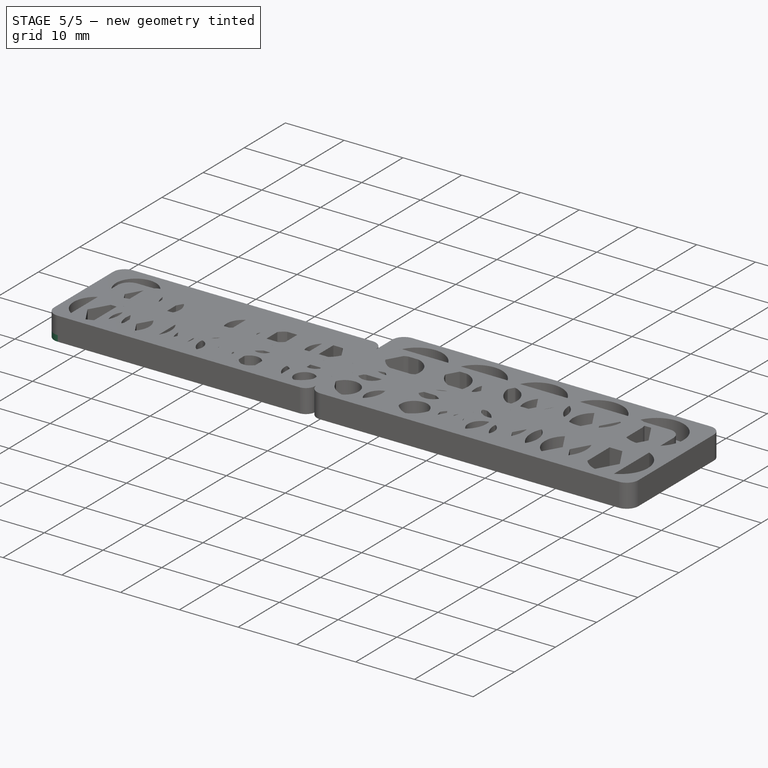
[diagram: stage 5 of 5 — iso view after this stage's code; geometry added in this stage tinted green]
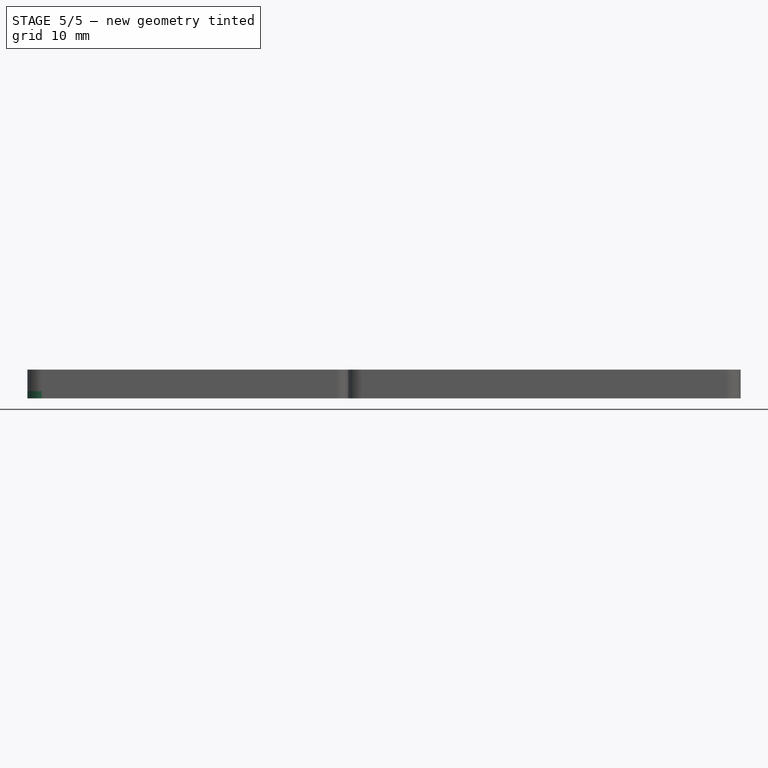
[diagram: stage 5 of 5 — front view after this stage's code; geometry added in this stage tinted green]
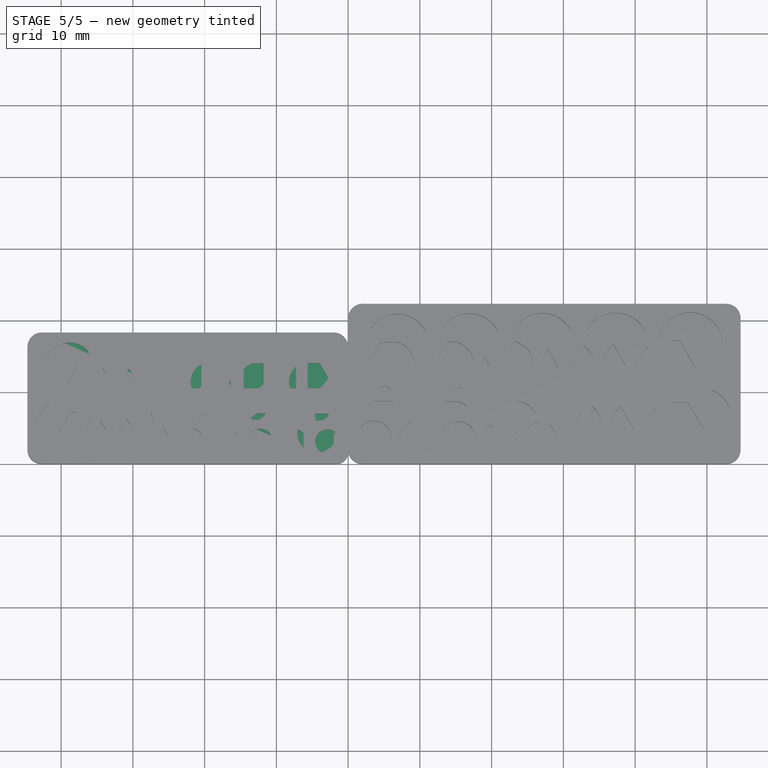
[diagram: stage 5 of 5 — top view after this stage's code; geometry added in this stage tinted green]
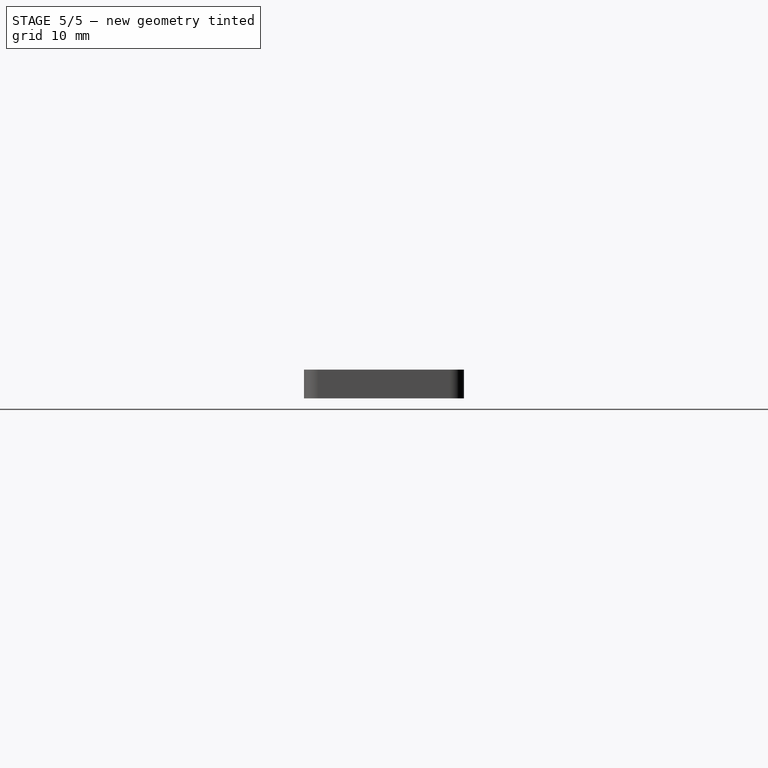
[diagram: stage 5 of 5 — right view after this stage's code; geometry added in this stage tinted green]
FEATURE [PartDesign::Body] Body005  label="M4H"
  Group = -> [Sketch005,Pad005]
  Origin = -> Origin005
  Placement = pos=(1,1,0) rot=(0,0,1;0rad)
  Tip = -> Pad005
FEATURE [Sketcher::SketchObject] Sketch007
  ExternalGeometry = -> [Sketch006]
  MapMode = 5
  Support = -> [XY_Plane006]
  sketch-geometry (8):
    g0: ArcOfCircle CenterX=-42.7 CenterY=16.3 CenterZ=0 NormalX=0 NormalY=0 NormalZ=1 AngleXU=0 Radius=2 StartAngle=1.5708 EndAngle=3.14159
    g1: ArcOfCircle CenterX=-2 CenterY=16.3 CenterZ=0 NormalX=0 NormalY=0 NormalZ=1 AngleXU=0 Radius=2 StartAngle=9e-16 EndAngle=1.5708
    g2: ArcOfCircle CenterX=-2 CenterY=2 CenterZ=0 NormalX=0 NormalY=0 NormalZ=1 AngleXU=0 Radius=2 StartAngle=4.71239 EndAngle=6.28319
    g3: ArcOfCircle CenterX=-42.7 CenterY=2 CenterZ=0 NormalX=0 NormalY=0 NormalZ=1 AngleXU=0 Radius=2 StartAngle=3.14159 EndAngle=4.71239
    g4: LineSegment StartX=-42.7 StartY=18.3 StartZ=0 EndX=-2 EndY=18.3 EndZ=0
    g5: LineSegment StartX=-44.7 StartY=2 StartZ=0 EndX=-44.7 EndY=16.3 EndZ=0
    g6: LineSegment StartX=-42.7 StartY=-1.8e-15 StartZ=0 EndX=-2 EndY=1.068e-13 EndZ=0
    g7: LineSegment StartX=-1.068e-13 StartY=2 StartZ=0 EndX=-4e-16 EndY=16.3 EndZ=0
  constraints (20):
    c: Coincident(g0,g-3)
    c: Coincident(g0,g-3)
    c: Coincident(g0,g-3)
    c: Coincident(g1,g-4)
    c: Coincident(g1,g-4)
    c: Coincident(g1,g-4)
    c: Coincident(g2,g-6)
    c: Coincident(g2,g-6)
    c: Coincident(g2,g-6)
    c: Coincident(g3,g-5)
    c: Coincident(g3,g-5)
    c: Coincident(g3,g-5)
    c: Coincident(g4,g0)
    c: Coincident(g4,g1)
    c: Coincident(g5,g3)
    c: Coincident(g5,g0)
    c: Coincident(g6,g3)
    c: Coincident(g6,g2)
    c: Coincident(g7,g2)
    c: Coincident(g7,g1)
FEATURE [PartDesign::Pad] Pad006
  AllowMultiFace = false
  Length = 1
  Length2 = 100
  Profile = -> Sketch007
  Type = 0
FEATURE [PartDesign::Body] Body011
  BaseFeature = -> Pad001
  Group = -> [Clone003]
  Origin = -> Origin013
  Placement = pos=(-1,-2,0) rot=(1,0,0;1.5708rad)
  Tip = -> Clone003
FEATURE [PartDesign::FeatureBase] Clone004
  BaseFeature = -> Pad003
FEATURE [PartDesign::Body] Body012
  BaseFeature = -> Pad003
  Group = -> [Clone004]
  Origin = -> Origin014
  Placement = pos=(1,13,-2.9e-15) rot=(1,0,0;1.5708rad)
  Tip = -> Clone004
FEATURE [PartDesign::FeatureBase] Clone005
  BaseFeature = -> Pad005
FEATURE [PartDesign::Body] Body013
  BaseFeature = -> Pad005
  Group = -> [Clone005]
  Origin = -> Origin015
  Placement = pos=(1,8,-1.8e-15) rot=(1,0,0;1.5708rad)
  Tip = -> Clone005
FEATURE [PartDesign::FeatureBase] Clone007
  BaseFeature = -> Pad002
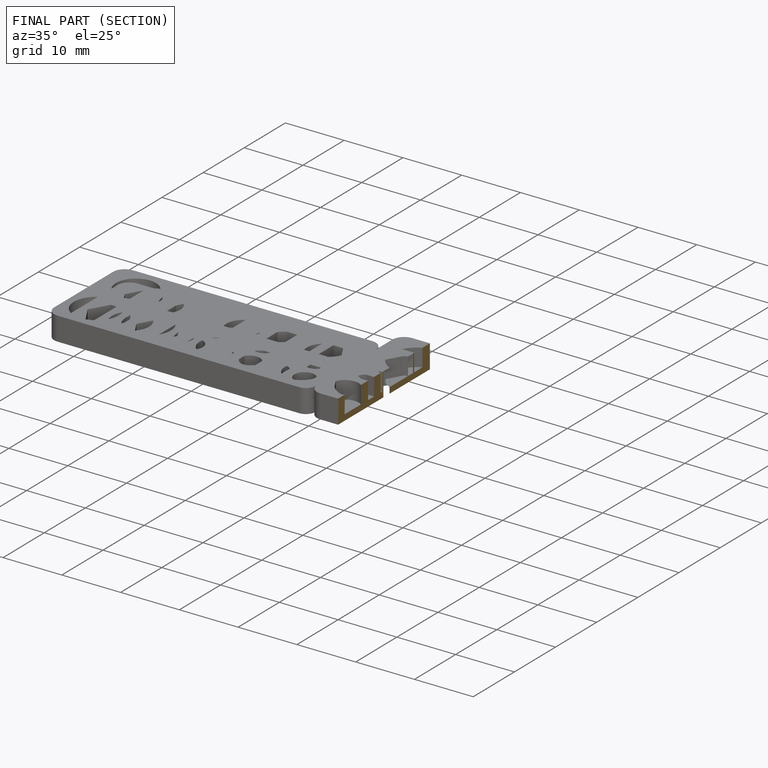
[diagram: finished part — half-section view (interior)]
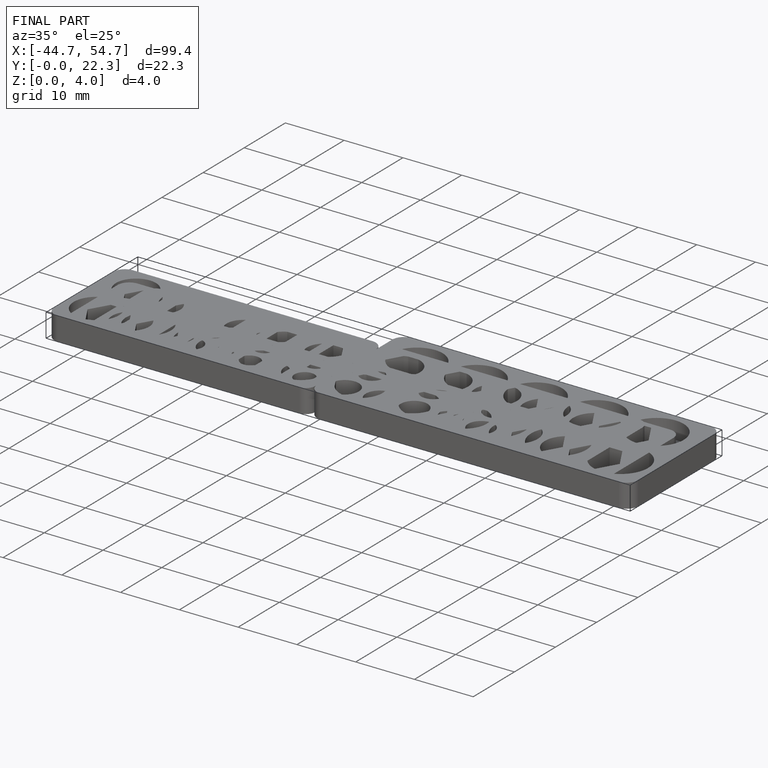
[diagram: finished part — iso view with bounding-box wireframe]
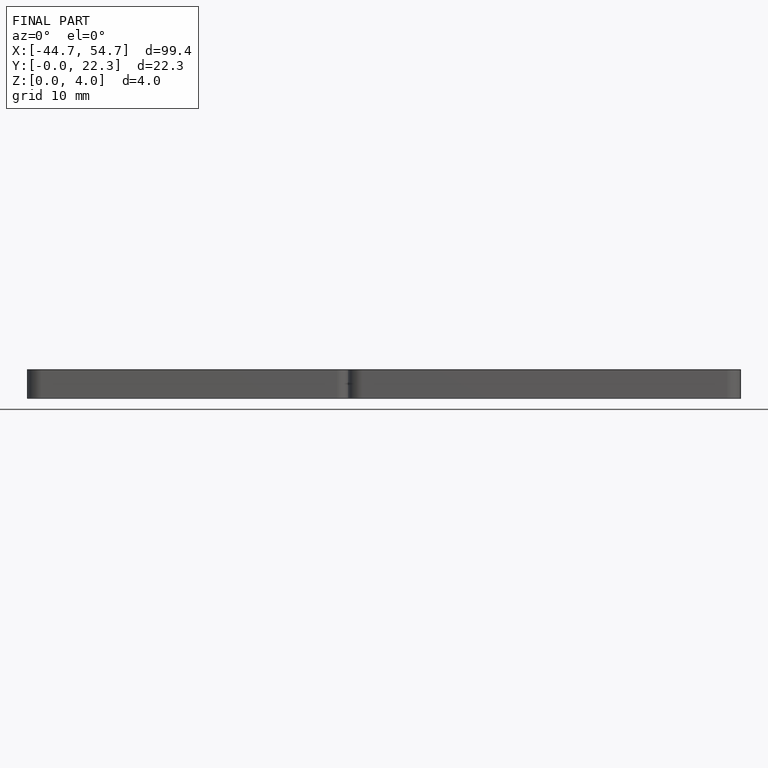
[diagram: finished part — front view with bounding-box wireframe]
